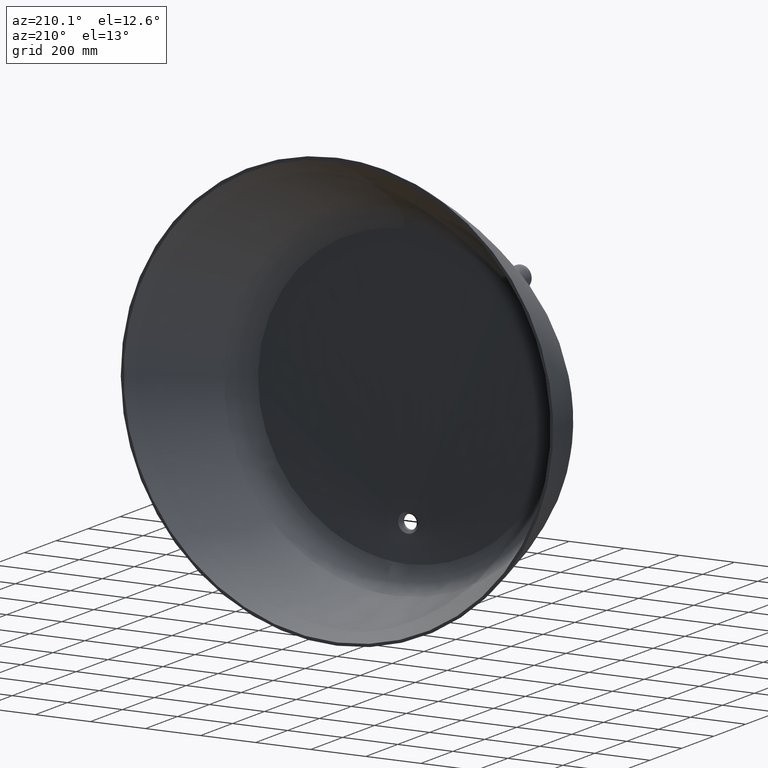
[diagram: clean part render]
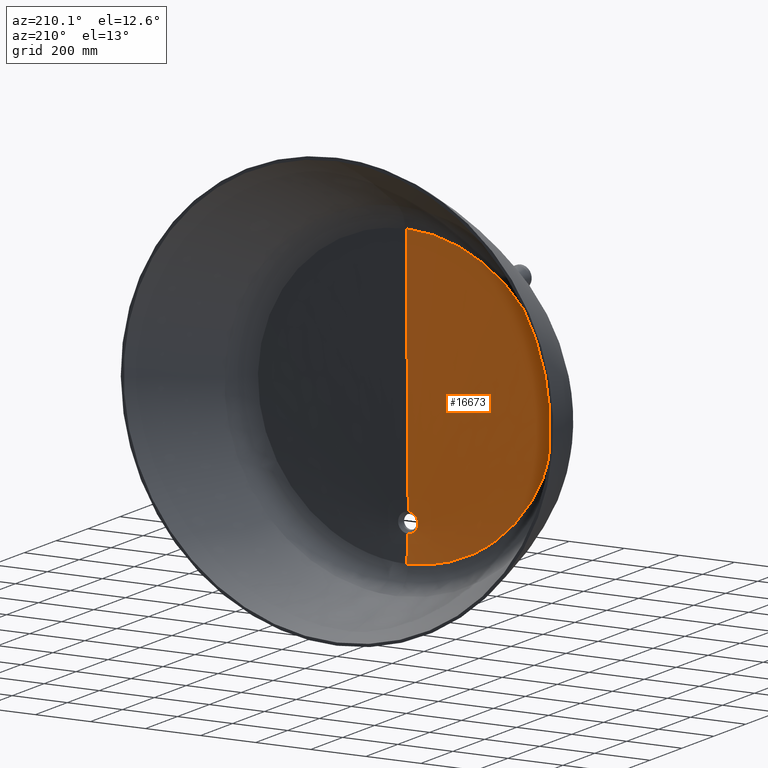
[diagram: same view with one face highlighted and labeled with its STEP entity id]
A machine part, auxiliary view. The second image highlights one B-rep face of the part: STEP entity #16673.
In plain terms, the highlighted face is a freeform B-spline surface patch.
Its self-contained STEP definition (entity closure, byte-faithful):
#9 = CARTESIAN_POINT ( 'NONE',  ( 15.44149996609328700, -445.0000000000000600, -495.9358828308780900 ) ) ;
#25 = CARTESIAN_POINT ( 'NONE',  ( 343.7248534708708100, -433.0000000000002800, -567.1922643707729300 ) ) ;
#41 = CARTESIAN_POINT ( 'NONE',  ( 347.0076870059186300, -432.8800000000002800, -567.9048281861719300 ) ) ;
#46 = CARTESIAN_POINT ( 'NONE',  ( 14.75211004821235000, -445.0000000000000600, -496.4254992289625100 ) ) ;
#47 = CARTESIAN_POINT ( 'NONE',  ( 379.3276363035412800, -432.8800000000000500, -543.6936507425234600 ) ) ;
#70 = CARTESIAN_POINT ( 'NONE',  ( -524.4853212740331400, -434.0363620575088800, 58.28474198315404900 ) ) ;
#85 = CARTESIAN_POINT ( 'NONE',  ( 327.5212440103445000, -433.0000000000000000, -578.0810039369722500 ) ) ;
#126 = CARTESIAN_POINT ( 'NONE',  ( -520.0808785790773100, -434.0151077196203500, 75.25433685949376200 ) ) ;
#136 = CARTESIAN_POINT ( 'NONE',  ( 330.6489353499658300, -432.8800000000000000, -578.8975589840523500 ) ) ;
#143 = CARTESIAN_POINT ( 'NONE',  ( 13.36761329702472900, -445.0000000000000600, -497.3155336650359000 ) ) ;
#185 = CARTESIAN_POINT ( 'NONE',  ( 295.0506589158848100, -433.0000000000000600, -597.7865438911159100 ) ) ;
#188 = CARTESIAN_POINT ( 'NONE',  ( -509.6456672297118200, -433.9752153030912600, 108.6945964368850800 ) ) ;
#222 = CARTESIAN_POINT ( 'NONE',  ( 297.8674893720734100, -432.8800000000000500, -598.7912539933767000 ) ) ;
#257 = CARTESIAN_POINT ( 'NONE',  ( 12.67250646371804000, -445.0000000000000600, -497.7159517030248700 ) ) ;
#283 = CARTESIAN_POINT ( 'NONE',  ( 278.7837310925589800, -433.0000000000000000, -606.6040093851203200 ) ) ;
#305 = CARTESIAN_POINT ( 'NONE',  ( 281.4448433388474200, -432.8800000000000000, -607.6928899619413200 ) ) ;
#319 = CARTESIAN_POINT ( 'NONE',  ( 11.28973872441234700, -445.0000000000001700, -498.4339215963023000 ) ) ;
#331 = CARTESIAN_POINT ( 'NONE',  ( -34.31258345571806200, -444.7095298495954700, -485.6750417637777000 ) ) ;
#342 = CARTESIAN_POINT ( 'NONE',  ( 246.4557750756700000, -432.9999999999998300, -622.3415226785501800 ) ) ;
#370 = CARTESIAN_POINT ( 'NONE',  ( -30.63130002817274500, -433.6305399696943800, 473.0140681143875000 ) ) ;
#376 = CARTESIAN_POINT ( 'NONE',  ( 248.8074354391826000, -432.8799999999998200, -623.5805986893726600 ) ) ;
#402 = CARTESIAN_POINT ( 'NONE',  ( 10.60204590782223200, -445.0000000000001700, -498.7516655761066300 ) ) ;
#465 = CARTESIAN_POINT ( 'NONE',  ( 230.3946313750532800, -432.9999999999997700, -629.2621245695675000 ) ) ;
#488 = CARTESIAN_POINT ( 'NONE',  ( 232.5925572297256000, -432.8799999999997700, -630.5672291595021800 ) ) ;
#495 = CARTESIAN_POINT ( 'NONE',  ( 0.2833448461211892100, -433.6296783176702000, 473.8905839626717100 ) ) ;
#530 = CARTESIAN_POINT ( 'NONE',  ( 9.242115576251329400, -445.0000000000001700, -499.3131197929937500 ) ) ;
#587 = CARTESIAN_POINT ( 'NONE',  ( 198.6870595554336800, -432.9999999999996600, -641.4023669301117300 ) ) ;
#604 = CARTESIAN_POINT ( 'NONE',  ( -25.56689201586797100, -444.5527508574655800, -500.0158251782440300 ) ) ;
#649 = CARTESIAN_POINT ( 'NONE',  ( 200.5815089952255100, -432.8799999999996500, -642.8232594014830300 ) ) ;
#672 = CARTESIAN_POINT ( 'NONE',  ( -24.29094569055607900, -444.5337188010244600, -501.2098345227630000 ) ) ;
#679 = CARTESIAN_POINT ( 'NONE',  ( 8.569878061270545200, -445.0000000000001700, -499.5568300300765800 ) ) ;
#717 = CARTESIAN_POINT ( 'NONE',  ( 183.0404164347378100, -433.0000000000001700, -646.6224330372264100 ) ) ;
#733 = CARTESIAN_POINT ( 'NONE',  ( 184.7851218184724800, -432.8800000000001700, -648.0930890672979100 ) ) ;
#750 = CARTESIAN_POINT ( 'NONE',  ( 7.248931528402691200, -445.0000000000002300, -499.9786649524677400 ) ) ;
#789 = CARTESIAN_POINT ( 'NONE',  ( -23.85534319239835800, -444.5273392658770000, -501.5980409663362100 ) ) ;
#826 = CARTESIAN_POINT ( 'NONE',  ( 152.3154114173910000, -433.0000000000000000, -655.5652551132833400 ) ) ;
#850 = CARTESIAN_POINT ( 'NONE',  ( -22.96330242206629200, -444.5145491902740700, -502.3546809905417900 ) ) ;
#855 = CARTESIAN_POINT ( 'NONE',  ( 153.7660762162808800, -432.8800000000000000, -657.1211210148915100 ) ) ;
#916 = CARTESIAN_POINT ( 'NONE',  ( 6.600136353995534200, -445.0000000000001700, -500.1568972860659400 ) ) ;
#956 = CARTESIAN_POINT ( 'NONE',  ( 137.2367875888101900, -432.9999999999999400, -659.2883126491526600 ) ) ;
#978 = CARTESIAN_POINT ( 'NONE',  ( 138.5431541011583400, -432.8799999999999400, -660.8796268027836000 ) ) ;
#1017 = CARTESIAN_POINT ( 'NONE',  ( 0.05413308068575505000, -437.7057518955884900, -606.7632742945040700 ) ) ;
#1022 = CARTESIAN_POINT ( 'NONE',  ( 5.329841008404020600, -445.0000000000001700, -500.4563098017469500 ) ) ;
#1072 = CARTESIAN_POINT ( 'NONE',  ( 107.7534834136913800, -433.0000000000000000, -665.4370880782352100 ) ) ;
#1085 = CARTESIAN_POINT ( 'NONE',  ( 108.7777198377442600, -432.8800000000000000, -667.0868958610001300 ) ) ;
#1088 = CARTESIAN_POINT ( 'NONE',  ( 4.708340837219667600, -445.0000000000001700, -500.5774899838296500 ) ) ;
#1108 = CARTESIAN_POINT ( 'NONE',  ( 93.34853240705629700, -433.0000000000000600, -667.8630002356301200 ) ) ;
#1138 = CARTESIAN_POINT ( 'NONE',  ( 94.23493432275468300, -432.8800000000000500, -669.5358553381481700 ) ) ;
#1148 = CARTESIAN_POINT ( 'NONE',  ( -0.7417357167064778700, -437.7057538739594000, -606.7633605234864300 ) ) ;
#1173 = CARTESIAN_POINT ( 'NONE',  ( 3.496574317243538000, -445.0000000000002300, -500.7711163001591200 ) ) ;
#1177 = CARTESIAN_POINT ( 'NONE',  ( 65.27845782840556400, -432.9999999999997200, -671.6064100346972100 ) ) ;
#1209 = CARTESIAN_POINT ( 'NONE',  ( -1.537405931273687900, -437.7057123049510200, -606.7615486997738100 ) ) ;
#1216 = CARTESIAN_POINT ( 'NONE',  ( 65.89627666351718500, -432.8799999999997100, -673.3147629720426700 ) ) ;
#1274 = CARTESIAN_POINT ( 'NONE',  ( -3.127905768479495300, -437.7055417729516800, -606.7541411088996000 ) ) ;
#1279 = CARTESIAN_POINT ( 'NONE',  ( 2.906221321538436300, -445.0000000000001700, -500.8436034637723000 ) ) ;
#1282 = CARTESIAN_POINT ( 'NONE',  ( 51.61307942120777200, -433.0000000000000000, -672.9240163917978600 ) ) ;
#1300 = CARTESIAN_POINT ( 'NONE',  ( 52.10014800220446300, -432.8800000000000000, -674.6448205210781500 ) ) ;
#1312 = ORIENTED_EDGE ( 'NONE', *, *, #14709, .F. ) ;
#1339 = CARTESIAN_POINT ( 'NONE',  ( 1.757710387891130700, -445.0000000000000600, -500.9470259963484300 ) ) ;
#1345 = CARTESIAN_POINT ( 'NONE',  ( 25.05622280737459200, -433.0000000000000000, -674.6242365382391900 ) ) ;
#1363 = CARTESIAN_POINT ( 'NONE',  ( 25.28920793156942200, -432.8800000000000000, -676.3610086436581200 ) ) ;
#1367 = CARTESIAN_POINT ( 'NONE',  ( 1.199552449948934500, -445.0000000000000600, -500.9779613653112700 ) ) ;
#1388 = CARTESIAN_POINT ( 'NONE',  ( -503.6151962790202700, -433.9565733147338200, 125.1653524643808200 ) ) ;
#1395 = CARTESIAN_POINT ( 'NONE',  ( 12.16451907402424700, -433.0000000000000600, -675.0068953567931700 ) ) ;
#1402 = CARTESIAN_POINT ( 'NONE',  ( 12.27416874026500100, -432.8800000000000500, -676.7471846967079000 ) ) ;
#1419 = CARTESIAN_POINT ( 'NONE',  ( 0.1165661610249617300, -445.0000000000000600, -501.0053805030397600 ) ) ;
#1422 = CARTESIAN_POINT ( 'NONE',  ( -12.83547701812308400, -433.0000000000000000, -674.9929170662915100 ) ) ;
#1446 = CARTESIAN_POINT ( 'NONE',  ( -12.96499744991456500, -432.8800000000000000, -676.7327924319239400 ) ) ;
#1450 = CARTESIAN_POINT ( 'NONE',  ( -493.3403809051902700, -433.9300944804489300, 149.4944154045570600 ) ) ;
#1453 = VERTEX_POINT ( 'NONE', #3211 ) ;
#1466 = CARTESIAN_POINT ( 'NONE',  ( -0.4424421159053100200, -444.9999999999999400, -501.0027296420385000 ) ) ;
#1484 = CARTESIAN_POINT ( 'NONE',  ( -25.72674477763056100, -433.0000000000000000, -674.5958421708621700 ) ) ;
#1489 = CARTESIAN_POINT ( 'NONE',  ( -25.97958780424781400, -432.8800000000000000, -676.3317732961504600 ) ) ;
#1511 = CARTESIAN_POINT ( 'NONE',  ( -1.594715155379254700, -444.9999999999998300, -500.9575585511362300 ) ) ;
#1524 = CARTESIAN_POINT ( 'NONE',  ( -52.28168349322820800, -432.9999999999999400, -672.8659255356111500 ) ) ;
#1530 = CARTESIAN_POINT ( 'NONE',  ( -52.78855317660670500, -432.8799999999999400, -674.5850092054558900 ) ) ;
#1552 = CARTESIAN_POINT ( 'NONE',  ( -2.187979917922936200, -444.9999999999998300, -500.9150383212352700 ) ) ;
#1572 = CARTESIAN_POINT ( 'NONE',  ( -65.94557992553755800, -433.0000000000000000, -671.5330385144047800 ) ) ;
#1611 = CARTESIAN_POINT ( 'NONE',  ( -66.58315592561369600, -432.8800000000000000, -673.2392185163364500 ) ) ;
#1639 = CARTESIAN_POINT ( 'NONE',  ( -3.407992149299948500, -444.9999999999998900, -500.7829799833656400 ) ) ;
#1641 = CARTESIAN_POINT ( 'NONE',  ( 375.7382676277012500, -433.0000000000000600, -543.2101603341541200 ) ) ;
#1642 = CARTESIAN_POINT ( 'NONE',  ( -489.7101699623157200, -433.9215190877198400, 157.5411287172918000 ) ) ;
#1655 = CARTESIAN_POINT ( 'NONE',  ( -94.01145083627955000, -432.9999999999999400, -667.7582413282854100 ) ) ;
#1678 = CARTESIAN_POINT ( 'NONE',  ( -94.91748542314935800, -432.8799999999999400, -669.4279939417346000 ) ) ;
#1702 = CARTESIAN_POINT ( 'NONE',  ( -4.034828230274482200, -444.9999999999999400, -500.6934052832541500 ) ) ;
#1714 = CARTESIAN_POINT ( 'NONE',  ( -108.4136800281622900, -432.9999999999996600, -665.3162221630381100 ) ) ;
#1723 = EDGE_CURVE ( 'NONE', #10976, #3406, #2468, .T. ) ;
#1765 = CARTESIAN_POINT ( 'NONE',  ( -109.4574685461411600, -432.8799999999996500, -666.9624503318359500 ) ) ;
#1772 = CARTESIAN_POINT ( 'NONE',  ( -17.38023338952148200, -433.6298954048141900, 473.6767832039365100 ) ) ;
#1777 = CARTESIAN_POINT ( 'NONE',  ( -5.318647477077397500, -445.0000000000000600, -500.4586580551212500 ) ) ;
#1791 = CARTESIAN_POINT ( 'NONE',  ( -33.74848163041693300, -444.6965264120924500, -487.3393069338290500 ) ) ;
#1803 = CARTESIAN_POINT ( 'NONE',  ( -137.8900898201988200, -432.9999999999997700, -659.1344804884126900 ) ) ;
#1806 = CARTESIAN_POINT ( 'NONE',  ( -139.2158042436300300, -432.8799999999997700, -660.7212387127457300 ) ) ;
#1851 = CARTESIAN_POINT ( 'NONE',  ( -33.31936187608958700, -444.6873827165178500, -488.4256712767187900 ) ) ;
#1859 = CARTESIAN_POINT ( 'NONE',  ( -451.2512435118486000, -435.1077201685944300, -358.7210658581751100 ) ) ;
#1888 = CARTESIAN_POINT ( 'NONE',  ( -5.975630642905788800, -445.0000000000001100, -500.3134855270997700 ) ) ;
#1894 = CARTESIAN_POINT ( 'NONE',  ( -8.547692200861590100, -433.6296735109386300, 473.8953649131653400 ) ) ;
#1929 = CARTESIAN_POINT ( 'NONE',  ( -152.9645408630419800, -433.0000000000000600, -655.3945634123041400 ) ) ;
#1952 = CARTESIAN_POINT ( 'NONE',  ( -154.4344299652433400, -432.8800000000000500, -656.9453741911561300 ) ) ;
#1996 = CARTESIAN_POINT ( 'NONE',  ( -7.316231213697510500, -445.0000000000000000, -499.9590358775902200 ) ) ;
#2062 = CARTESIAN_POINT ( 'NONE',  ( -183.6795262417567800, -432.9999999999999400, -646.4173882895096300 ) ) ;
#2079 = CARTESIAN_POINT ( 'NONE',  ( -22.50708056671070900, -444.5081414524194100, -502.7229454803344900 ) ) ;
#2082 = CARTESIAN_POINT ( 'NONE',  ( -185.4431591920373400, -432.8799999999999400, -647.8819718136288700 ) ) ;
#2085 = CARTESIAN_POINT ( 'NONE',  ( -7.999940112203148600, -444.9999999999999400, -499.7496556055718300 ) ) ;
#2123 = CARTESIAN_POINT ( 'NONE',  ( -199.3203221721636900, -432.9999999999999400, -641.1798283831757300 ) ) ;
#2143 = CARTESIAN_POINT ( 'NONE',  ( -21.57251362444656800, -444.4953288684129700, -503.4400680085879600 ) ) ;
#2149 = CARTESIAN_POINT ( 'NONE',  ( -201.2335259927633000, -432.8799999999999400, -642.5941301109518200 ) ) ;
#2211 = CARTESIAN_POINT ( 'NONE',  ( -9.386539793221738000, -444.9999999999999400, -499.2577382659851500 ) ) ;
#2238 = CARTESIAN_POINT ( 'NONE',  ( -34.81033289014928300, -444.7219510947774100, -483.9793464935229400 ) ) ;
#2258 = CARTESIAN_POINT ( 'NONE',  ( -231.0142981817866700, -433.0000000000000000, -629.0041362069372300 ) ) ;
#2278 = CARTESIAN_POINT ( 'NONE',  ( -21.09542012216041900, -444.4889414310288200, -503.7878310045151700 ) ) ;
#2284 = CARTESIAN_POINT ( 'NONE',  ( -233.2305757656723100, -432.8800000000000000, -630.3016001863467200 ) ) ;
#2319 = CARTESIAN_POINT ( 'NONE',  ( -10.08943057573469000, -444.9999999999999400, -498.9752011984167600 ) ) ;
#2340 = CARTESIAN_POINT ( 'NONE',  ( -247.0676927865866300, -432.9999999999998900, -622.0655780592815100 ) ) ;
#2400 = CARTESIAN_POINT ( 'NONE',  ( -249.4374754086951500, -432.8799999999998800, -623.2964818278902600 ) ) ;
#2435 = CARTESIAN_POINT ( 'NONE',  ( -11.50675868255489600, -445.0000000000000000, -498.3281243667077000 ) ) ;
#2438 = CARTESIAN_POINT ( 'NONE',  ( -279.3780299103594900, -432.9999999999999400, -606.2919234466389800 ) ) ;
#2457 = CARTESIAN_POINT ( 'NONE',  ( -282.0567426226375000, -432.8799999999999400, -607.3715614374383400 ) ) ;
#2468 = B_SPLINE_CURVE_WITH_KNOTS ( 'NONE', 3,
 ( #495, #1894, #1772, #370, #8925, #8854, #8796, #19038, #18977, #17735, #17668, #17606, #17485, #16340, #16274, #16149, #16029, #14801, #14677, #14616, #14557, #13396, #13268, #11833, #10231, #10173, #10112, #8736, #8673, #8603, #7345, #7274, #7214, #6016, #5842, #4553, #4486, #4426, #4368, #4311, #4249, #3083, #2852, #2794, #2730, #1642, #1450, #1388, #188, #126, #70, #17612, #16096, #14622, #11711, #7221, #5786, #4315, #2857, #18698, #17181, #9811, #8313, #3951, #18996, #8620, #4197, #2745, #18036, #16508, #16446, #15136, #15017, #14963, #12162, #12097, #10644, #9147, #4840, #4640, #3238, #3177, #1859, #15876, #14406, #9955, #6988, #18967, #18909, #18848, #18787, #18728, #18607, #18543, #18406, #18340, #17537, #17343, #17277, #17213, #17146, #17085, #17031, #16017, #15895, #15829, #15768, #15641, #15576, #15373, #14545, #14361, #14231, #14168 ),
 .UNSPECIFIED., .F., .F.,
 ( 4, 2, 2, 2, 2, 2, 2, 2, 2, 2, 2, 2, 2, 2, 2, 2, 2, 2, 2, 2, 2, 2, 2, 2, 2, 2, 2, 2, 2, 2, 2, 2, 2, 2, 2, 2, 2, 2, 2, 2, 2, 2, 2, 2, 2, 2, 2, 2, 2, 2, 2, 2, 2, 2, 2, 2, 4 ),
 ( 1.682910725432877200, 1.709145322678809100, 1.722262621301774900, 1.728821270613258000, 1.735379919924740800, 1.787849114416604400, 1.840318308908468000, 1.892787503400331600, 1.905904802023297600, 1.912463451334780700, 1.919022100646263800, 1.945256697892195900, 1.997725892384060400, 2.050195086875924700, 2.076429684121857000, 2.089546982744822800, 2.096105632056305600, 2.102664281367788500, 2.155133475859653200, 2.207602670351517500, 2.260071864843381700, 2.273189163466347900, 2.286306462089314100, 2.312541059335246500, 2.365010253827111200, 2.417479448318975900, 2.443714045564908200, 2.450272694876391100, 2.456831344187874400, 2.469948642810840600, 2.522417837302705300, 2.574887031794570000, 2.627356226286434700, 2.633914875597918000, 2.640473524909400900, 2.653590823532367100, 2.679825420778299400, 2.732294615270164200, 2.784763809762028900, 2.810998407007961200, 2.824115705630927800, 2.837233004253893600, 2.889702198745758300, 2.942171393237622100, 2.994640587729486800, 3.007757886352452600, 3.020875184975419200, 3.047109782221351100, 3.099578976713215800, 3.152048171205080100, 3.178282768451012400, 3.184841417762495700, 3.191400067073979100, 3.204517365696944800, 3.256986560188810400, 3.309455754680676000, 3.361924949172541100 ),
 .UNSPECIFIED. ) ;
#2497 = CARTESIAN_POINT ( 'NONE',  ( -12.22123759878698800, -444.9999999999999400, -497.9633943389939600 ) ) ;
#2521 = CARTESIAN_POINT ( 'NONE',  ( -295.6350873166937800, -433.0000000000001700, -597.4562727612393500 ) ) ;
#2547 = CARTESIAN_POINT ( 'NONE',  ( -298.4692258138728700, -432.8800000000001700, -598.4512015454618000 ) ) ;
#2559 = CARTESIAN_POINT ( 'NONE',  ( -13.64899961005685800, -444.9999999999999400, -497.1445609062250200 ) ) ;
#2580 = CARTESIAN_POINT ( 'NONE',  ( -328.0836161312006400, -432.9999999999999400, -577.7144344720871900 ) ) ;
#2617 = CARTESIAN_POINT ( 'NONE',  ( -331.2279622964120400, -432.8799999999999400, -578.5201332077457400 ) ) ;
#2639 = CARTESIAN_POINT ( 'NONE',  ( -14.36228270509463400, -444.9999999999999400, -496.6904575011698200 ) ) ;
#2665 = CARTESIAN_POINT ( 'NONE',  ( -344.2750389850315900, -433.0000000000000600, -566.8075818161568100 ) ) ;
#2675 = CARTESIAN_POINT ( 'NONE',  ( -347.5741665478309400, -432.8800000000000500, -567.5087530593066300 ) ) ;
#2679 = CARTESIAN_POINT ( 'NONE',  ( -15.77482752713680700, -445.0000000000001100, -495.6858871600954300 ) ) ;
#2701 = CARTESIAN_POINT ( 'NONE',  ( -376.2616148240987300, -433.0000000000002800, -542.7896933558520200 ) ) ;
#2730 = CARTESIAN_POINT ( 'NONE',  ( -483.9518875108856300, -433.9089801501318700, 169.5151856120818100 ) ) ;
#2737 = CARTESIAN_POINT ( 'NONE',  ( -3.922808275801966900, -437.7054128102328100, -606.7485453586226600 ) ) ;
#2739 = CARTESIAN_POINT ( 'NONE',  ( -379.8664826970683100, -432.8800000000002800, -543.2607314178096700 ) ) ;
#2743 = CARTESIAN_POINT ( 'NONE',  ( -16.47399670952314600, -445.0000000000000600, -495.1351699995946100 ) ) ;
#2745 = CARTESIAN_POINT ( 'NONE',  ( -527.2513307449980900, -434.4644582876586600, -177.2562441564563800 ) ) ;
#2767 = CARTESIAN_POINT ( 'NONE',  ( -392.0564898005732200, -432.9999999999998300, -529.6779305721888700 ) ) ;
#2791 = CARTESIAN_POINT ( 'NONE',  ( -395.8123147314837000, -432.8799999999998200, -530.0233581779149300 ) ) ;
#2794 = CARTESIAN_POINT ( 'NONE',  ( -481.9780762777368700, -433.9048515038268800, 173.4945817070315000 ) ) ;
#2802 = CARTESIAN_POINT ( 'NONE',  ( -17.84040821804229500, -444.9999999999999400, -493.9351053096568800 ) ) ;
#2808 = CARTESIAN_POINT ( 'NONE',  ( -422.8623815143669200, -432.9999999999998900, -501.1780356190980100 ) ) ;
#2824 = CARTESIAN_POINT ( 'NONE',  ( -426.9126012473301400, -432.8799999999998800, -501.2504649221924100 ) ) ;
#2828 = CARTESIAN_POINT ( 'NONE',  ( -18.50765054417510000, -444.9999999999998900, -493.2857577802200800 ) ) ;
#2849 = CARTESIAN_POINT ( 'NONE',  ( 0.6034969892666405300, -444.3409941869582600, -510.5477085865213100 ) ) ;
#2850 = CARTESIAN_POINT ( 'NONE',  ( -437.8728386835980500, -432.9999999999999400, -485.7892007591005900 ) ) ;
#2852 = CARTESIAN_POINT ( 'NONE',  ( -477.9455633571349700, -433.8967423558010000, 181.3813335263668900 ) ) ;
#2857 = CARTESIAN_POINT ( 'NONE',  ( -535.7848243012940700, -434.1271120910306500, -6.921716537291233700 ) ) ;
#2860 = CARTESIAN_POINT ( 'NONE',  ( -442.0664905649923100, -432.8799999999999400, -485.7142351888894000 ) ) ;
#2865 = CARTESIAN_POINT ( 'NONE',  ( -19.79248794120239200, -444.9999999999998900, -491.8866659634025500 ) ) ;
#2881 = CARTESIAN_POINT ( 'NONE',  ( -466.6777868586815400, -433.0000000000000600, -452.7462555338117300 ) ) ;
#2906 = CARTESIAN_POINT ( 'NONE',  ( -471.1466398478563100, -432.8800000000000500, -452.3548514295158600 ) ) ;
#2915 = CARTESIAN_POINT ( 'NONE',  ( -20.40979272966010100, -444.9999999999999400, -491.1367276056332100 ) ) ;
#2939 = CARTESIAN_POINT ( 'NONE',  ( -480.4714204092341000, -433.0000000000001700, -435.0915873329927900 ) ) ;
#2963 = CARTESIAN_POINT ( 'NONE',  ( -485.0720366860298300, -432.8800000000001700, -434.5311359302663700 ) ) ;
#2978 = CARTESIAN_POINT ( 'NONE',  ( -21.57440894008208000, -444.9999999999999400, -489.5430130143465700 ) ) ;
#3029 = CARTESIAN_POINT ( 'NONE',  ( 0.6034969892666405300, -444.3409941869582600, -510.5477085865213100 ) ) ;
#3030 = CARTESIAN_POINT ( 'NONE',  ( -506.3873338284471400, -432.9999999999998300, -397.6307568043974900 ) ) ;
#3036 = CARTESIAN_POINT ( 'NONE',  ( -511.2354630773307900, -432.8799999999998200, -396.7116342422979800 ) ) ;
#3056 = CARTESIAN_POINT ( 'NONE',  ( -22.12172036204633600, -445.0000000000000000, -488.6992367808290400 ) ) ;
#3078 = CARTESIAN_POINT ( 'NONE',  ( -518.5085000486769800, -433.0000000000000600, -377.8243196892621500 ) ) ;
#3083 = CARTESIAN_POINT ( 'NONE',  ( -475.8850469944882200, -433.8927578965274800, 185.2926761800045800 ) ) ;
#3092 = CARTESIAN_POINT ( 'NONE',  ( -523.4723678455433200, -432.8800000000000500, -376.7155705183464500 ) ) ;
#3150 = CARTESIAN_POINT ( 'NONE',  ( -22.87536831033597600, -444.9999999999999400, -487.3684042909718500 ) ) ;
#3177 = CARTESIAN_POINT ( 'NONE',  ( -453.6562196069805300, -435.0897738771726600, -355.0122941596641800 ) ) ;
#3206 = CARTESIAN_POINT ( 'NONE',  ( -535.1000815888555700, -432.9999999999999400, -346.6731694299215900 ) ) ;
#3211 = CARTESIAN_POINT ( 'NONE',  ( 0.05413308068575505000, -437.7057518955884900, -606.7632742945040700 ) ) ;
#3231 = CARTESIAN_POINT ( 'NONE',  ( -32.35753178418684000, -444.6680886796183900, -490.5494187290319100 ) ) ;
#3238 = CARTESIAN_POINT ( 'NONE',  ( -458.3841195991832900, -435.0543396110464300, -347.5229451587179600 ) ) ;
#3244 = CARTESIAN_POINT ( 'NONE',  ( -540.2223287216407900, -432.8799999999999400, -345.2662170813110800 ) ) ;
#3271 = CARTESIAN_POINT ( 'NONE',  ( -23.11525741661970900, -444.9999999999999400, -486.9139416834132100 ) ) ;
#3279 = EDGE_CURVE ( 'NONE', #4090, #12133, #5920, .T. ) ;
#3297 = CARTESIAN_POINT ( 'NONE',  ( -540.3657397873470200, -433.0000000000000000, -336.0501338327198900 ) ) ;
#3316 = B_SPLINE_CURVE_WITH_KNOTS ( 'NONE', 1,
 ( #4526, #4939 ),
 .UNSPECIFIED., .F., .F.,
 ( 2, 2 ),
 ( 0.3921459912990322700, 0.9450828378924802700 ),
 .UNSPECIFIED. ) ;
#3344 = CARTESIAN_POINT ( 'NONE',  ( -545.5382446110543200, -432.8800000000000000, -334.5414957542129700 ) ) ;
#3373 = CARTESIAN_POINT ( 'NONE',  ( -23.57034716792720300, -444.9999999999999400, -485.9854367024231600 ) ) ;
#3377 = CARTESIAN_POINT ( 'NONE',  ( -550.3149743519481900, -433.0000000000001100, -314.3652734087016300 ) ) ;
#3397 = CARTESIAN_POINT ( 'NONE',  ( -555.5824206237883800, -432.8800000000001100, -312.6490717757644100 ) ) ;
#3406 = VERTEX_POINT ( 'NONE', #4841 ) ;
#3462 = CARTESIAN_POINT ( 'NONE',  ( -20.13076628491415200, -444.4763791744082900, -504.4555119069413500 ) ) ;
#3468 = CARTESIAN_POINT ( 'NONE',  ( -23.78554781295095600, -444.9999999999999400, -485.5113943289916800 ) ) ;
#3515 = CARTESIAN_POINT ( 'NONE',  ( -554.9985109544696800, -432.9999999999997700, -303.3034600155097000 ) ) ;
#3534 = CARTESIAN_POINT ( 'NONE',  ( -19.64139392670991000, -444.4701780540494800, -504.7768352542926200 ) ) ;
#3538 = CARTESIAN_POINT ( 'NONE',  ( -560.3106405858848100, -432.8799999999997700, -301.4813806723748300 ) ) ;
#3540 = CARTESIAN_POINT ( 'NONE',  ( -24.18922593343725300, -444.9999999999999400, -484.5458536055958800 ) ) ;
#3556 = CARTESIAN_POINT ( 'NONE',  ( -563.7349442573619200, -432.9999999999998300, -280.7880697219381400 ) ) ;
#3572 = CARTESIAN_POINT ( 'NONE',  ( 0.2833448461211892100, -433.6296783176702000, 473.8905839626717100 ) ) ;
#3599 = CARTESIAN_POINT ( 'NONE',  ( -569.1304014406010800, -432.8799999999998200, -278.7504918831015700 ) ) ;
#3603 = CARTESIAN_POINT ( 'NONE',  ( -24.37770340889979100, -444.9999999999999400, -484.0543552556316600 ) ) ;
#3680 = CARTESIAN_POINT ( 'NONE',  ( -567.7878025044907400, -432.9999999999998900, -269.3345118708074300 ) ) ;
#3688 = CARTESIAN_POINT ( 'NONE',  ( -34.48756382462291000, -444.7137503770474000, -485.1134883979901200 ) ) ;
#3708 = CARTESIAN_POINT ( 'NONE',  ( -573.2219034954466700, -432.8799999999998800, -267.1873134369591900 ) ) ;
#3725 = CARTESIAN_POINT ( 'NONE',  ( -18.15471200844102700, -444.4519200149711700, -505.7021820438224600 ) ) ;
#3763 = CARTESIAN_POINT ( 'NONE',  ( -24.72590048196251200, -444.9999999999999400, -483.0560263685100600 ) ) ;
#3783 = CARTESIAN_POINT ( 'NONE',  ( -575.2193654199828600, -433.0000000000001700, -246.0893708643994800 ) ) ;
#3786 = CARTESIAN_POINT ( 'NONE',  ( -580.7243000693630400, -432.8800000000001700, -243.7197043093583500 ) ) ;
#3822 = CARTESIAN_POINT ( 'NONE',  ( -24.88562007956268500, -444.9999999999999400, -482.5491958313526800 ) ) ;
#3838 = CARTESIAN_POINT ( 'NONE',  ( -578.5980346276143100, -433.0000000000000600, -234.2978142191640500 ) ) ;
#3842 = CARTESIAN_POINT ( 'NONE',  ( -584.1351587730947600, -432.8800000000000500, -231.8153004030421600 ) ) ;
#3878 = CARTESIAN_POINT ( 'NONE',  ( -25.17426668859936400, -445.0000000000000000, -481.5223263591852900 ) ) ;
#3881 = CARTESIAN_POINT ( 'NONE',  ( -584.6438655225383600, -433.0000000000001100, -210.4364419083918000 ) ) ;
#3941 = CARTESIAN_POINT ( 'NONE',  ( -590.2385615108777300, -432.8800000000001100, -207.7255830638838700 ) ) ;
#3944 = CARTESIAN_POINT ( 'NONE',  ( -25.30310892052333200, -445.0000000000000600, -481.0023759153977500 ) ) ;
#3951 = CARTESIAN_POINT ( 'NONE',  ( -535.0360600846049700, -434.3596939393286800, -133.7986677093544800 ) ) ;
#3968 = CARTESIAN_POINT ( 'NONE',  ( -587.3109964050205500, -432.9999999999999400, -198.3666596362723500 ) ) ;
#3992 = CARTESIAN_POINT ( 'NONE',  ( -592.9310752798655800, -432.8799999999999400, -195.5403024734810900 ) ) ;
#4006 = B_SPLINE_CURVE_WITH_KNOTS ( 'NONE', 3,
 ( #4063, #2737, #1274, #1209, #1148, #1017 ),
 .UNSPECIFIED., .F., .F.,
 ( 4, 2, 4 ),
 ( 3.361924949172541100, 3.364275780021901400, 3.366626610871261700 ),
 .UNSPECIFIED. ) ;
#4010 = CARTESIAN_POINT ( 'NONE',  ( -25.52898559482021700, -445.0000000000000600, -479.9524520190711300 ) ) ;
#4028 = CARTESIAN_POINT ( 'NONE',  ( -591.9035568715507900, -433.0000000000000000, -174.0137292039714800 ) ) ;
#4054 = CARTESIAN_POINT ( 'NONE',  ( -597.5673025843181000, -432.8800000000000000, -170.9543419758204800 ) ) ;
#4063 = CARTESIAN_POINT ( 'NONE',  ( -4.717364487500916000, -437.7052400608869200, -606.7410637338608700 ) ) ;
#4067 = CARTESIAN_POINT ( 'NONE',  ( -25.62602003719312900, -445.0000000000000600, -479.4224785665321100 ) ) ;
#4071 = CARTESIAN_POINT ( 'NONE',  ( -593.8289618320961800, -433.0000000000000600, -161.7306203239421300 ) ) ;
#4090 = VERTEX_POINT ( 'NONE', #3029 ) ;
#4119 = CARTESIAN_POINT ( 'NONE',  ( -599.5109912500452100, -432.8800000000000500, -158.5537017415162500 ) ) ;
#4131 = CARTESIAN_POINT ( 'NONE',  ( -25.78743548802543700, -445.0000000000000600, -478.3555170593594400 ) ) ;
#4135 = EDGE_CURVE ( 'NONE', #3406, #1453, #4006, .T. ) ;
#4154 = CARTESIAN_POINT ( 'NONE',  ( -596.9158740515529200, -433.0000000000000000, -137.0199622511297300 ) ) ;
#4159 = CARTESIAN_POINT ( 'NONE',  ( -602.6271584371882000, -432.8800000000000000, -133.6066067030474200 ) ) ;
#4195 = CARTESIAN_POINT ( 'NONE',  ( -25.85181649648484000, -445.0000000000000000, -477.8185290047258000 ) ) ;
#4197 = CARTESIAN_POINT ( 'NONE',  ( -528.1683492891244200, -434.4534383182189000, -172.9158818970653000 ) ) ;
#4245 = CARTESIAN_POINT ( 'NONE',  ( -598.0773641379873900, -433.0000000000000600, -124.5924568501075200 ) ) ;
#4249 = CARTESIAN_POINT ( 'NONE',  ( -465.3637800785442100, -433.8731635001685700, 204.6911153379269600 ) ) ;
#4275 = CARTESIAN_POINT ( 'NONE',  ( -603.7996196144024500, -432.8800000000000500, -121.0601961285613400 ) ) ;
#4307 = CARTESIAN_POINT ( 'NONE',  ( -25.94707943512773700, -444.9999999999999400, -476.7405467000206200 ) ) ;
#4311 = CARTESIAN_POINT ( 'NONE',  ( -456.2489860862161800, -433.8585104900160400, 219.7048455861572100 ) ) ;
#4315 = CARTESIAN_POINT ( 'NONE',  ( -535.2644933809371000, -434.1205541024440300, -2.525381832852409100 ) ) ;
#4319 = CARTESIAN_POINT ( 'NONE',  ( -599.6228791959032400, -433.0000000000001100, -99.66471194819889900 ) ) ;
#4324 = CARTESIAN_POINT ( 'NONE',  ( -605.3596371935110500, -432.8800000000001100, -95.89395360068067500 ) ) ;
#4345 = CARTESIAN_POINT ( 'NONE',  ( -25.97796136531122400, -444.9999999999999400, -476.1995524499490700 ) ) ;
#4368 = CARTESIAN_POINT ( 'NONE',  ( -436.6615461455590400, -433.8307702933838600, 248.7495555192143100 ) ) ;
#4422 = CARTESIAN_POINT ( 'NONE',  ( -600.0068953567935100, -433.0000000000000600, -87.16451907402424100 ) ) ;
#4426 = CARTESIAN_POINT ( 'NONE',  ( -426.1885716810986100, -433.8177128950168300, 262.7802974671716400 ) ) ;
#4436 = CARTESIAN_POINT ( 'NONE',  ( -605.7471846967082500, -432.8800000000000500, -83.27416874026499700 ) ) ;
#4486 = CARTESIAN_POINT ( 'NONE',  ( -403.8771728664684100, -433.7929212853740600, 289.8535315300518400 ) ) ;
#4495 = CARTESIAN_POINT ( 'NONE',  ( -26.00538050303984900, -444.9999999999999400, -475.1165661610250500 ) ) ;
#4502 = CARTESIAN_POINT ( 'NONE',  ( -599.9929170662911700, -433.0000000000001100, -62.16452298187668600 ) ) ;
#4523 = CARTESIAN_POINT ( 'NONE',  ( -605.7327924319237100, -432.8800000000001100, -58.03500255008520300 ) ) ;
#4526 = CARTESIAN_POINT ( 'NONE',  ( 0.05413308068575505000, -437.7057518955884900, -606.7632742945040700 ) ) ;
#4537 = B_SPLINE_CURVE_WITH_KNOTS ( 'NONE', 1,
 ( #6846, #6958 ),
 .UNSPECIFIED., .F., .F.,
 ( 2, 2 ),
 ( 0.05247319313919063900, 0.9896024752577973200 ),
 .UNSPECIFIED. ) ;
#4553 = CARTESIAN_POINT ( 'NONE',  ( -392.0397766256653000, -433.7811959294816700, 302.8967677526141000 ) ) ;
#4608 = CARTESIAN_POINT ( 'NONE',  ( -26.00191446571662700, -444.9999999999999400, -474.5747022862304300 ) ) ;
#4619 = CARTESIAN_POINT ( 'NONE',  ( -599.5949226415085600, -433.0000000000000600, -49.66476735461606000 ) ) ;
#4640 = CARTESIAN_POINT ( 'NONE',  ( -460.7090276084240900, -435.0368365335413000, -343.7388405032227200 ) ) ;
#4669 = CARTESIAN_POINT ( 'NONE',  ( -605.3308527232665000, -432.8800000000000500, -45.41566800529991400 ) ) ;
#4681 = CARTESIAN_POINT ( 'NONE',  ( -25.96132350302704600, -444.9999999999999400, -473.4932804210529900 ) ) ;
#4705 = CARTESIAN_POINT ( 'NONE',  ( -598.0215327735093100, -432.9999999999998900, -24.73876633134415600 ) ) ;
#4706 = ORIENTED_EDGE ( 'NONE', *, *, #1723, .F. ) ;
#4710 = CARTESIAN_POINT ( 'NONE',  ( -603.7421348662142000, -432.8799999999998800, -20.25122119044706900 ) ) ;
#4735 = CARTESIAN_POINT ( 'NONE',  ( -25.92419857766067200, -444.9999999999999400, -472.9537224306701500 ) ) ;
#4751 = CARTESIAN_POINT ( 'NONE',  ( -596.8461461930191900, -433.0000000000000600, -12.31256755216288600 ) ) ;
#4817 = CARTESIAN_POINT ( 'NONE',  ( -602.5553656691728300, -432.8800000000000500, -7.706156003377812700 ) ) ;
#4840 = CARTESIAN_POINT ( 'NONE',  ( -467.5232912657400600, -434.9852744065648800, -332.3382029722401400 ) ) ;
#4841 = CARTESIAN_POINT ( 'NONE',  ( -4.717364487500916000, -437.7052400608869200, -606.7410637338608700 ) ) ;
#4848 = CARTESIAN_POINT ( 'NONE',  ( -25.81698216321668600, -444.9999999999999400, -471.8799596793934400 ) ) ;
#4873 = CARTESIAN_POINT ( 'NONE',  ( -593.7316028874300900, -432.9999999999998900, 12.39462309023295800 ) ) ;
#4888 = CARTESIAN_POINT ( 'NONE',  ( -599.4107490946721600, -432.8799999999998800, 17.23736891792922100 ) ) ;
#4909 = CARTESIAN_POINT ( 'NONE',  ( -25.74689067413908100, -445.0000000000000000, -471.3457549184996100 ) ) ;
#4931 = CARTESIAN_POINT ( 'NONE',  ( -17.13719508899343700, -444.4401839962922100, -506.2689752483511300 ) ) ;
#4937 = CARTESIAN_POINT ( 'NONE',  ( -591.7924633837677700, -433.0000000000000600, 24.67557118091728800 ) ) ;
#4939 = CARTESIAN_POINT ( 'NONE',  ( 0.6034969892666405300, -444.3409941869582600, -510.5477085865213100 ) ) ;
#4984 = CARTESIAN_POINT ( 'NONE',  ( -597.4529191108640600, -432.8800000000000500, 29.63578444191145800 ) ) ;
#5004 = CARTESIAN_POINT ( 'NONE',  ( -15.05062040204882700, -444.4180261176548500, -507.3028317690872800 ) ) ;
#5010 = CARTESIAN_POINT ( 'NONE',  ( -25.57443345660452000, -445.0000000000000600, -470.2857459712780000 ) ) ;
#5050 = CARTESIAN_POINT ( 'NONE',  ( -587.1726728061297500, -433.0000000000000000, 49.02335069564900700 ) ) ;
#5055 = CARTESIAN_POINT ( 'NONE',  ( -592.7886551996249400, -432.8800000000000000, 54.21644166231828200 ) ) ;
#5073 = CARTESIAN_POINT ( 'NONE',  ( -25.47206772814757200, -445.0000000000000600, -469.7599417849501700 ) ) ;
#5090 = CARTESIAN_POINT ( 'NONE',  ( -584.4920463995657700, -433.0000000000000000, 61.09014286710409200 ) ) ;
#5136 = CARTESIAN_POINT ( 'NONE',  ( -590.0822461862799200, -432.8800000000000000, 66.39864371362463700 ) ) ;
#5139 = CARTESIAN_POINT ( 'NONE',  ( -25.23575435618630200, -445.0000000000002300, -468.7197813319382400 ) ) ;
#5153 = CARTESIAN_POINT ( 'NONE',  ( -578.4195359934917600, -432.9999999999998300, 84.94473942901287000 ) ) ;
#5181 = CARTESIAN_POINT ( 'NONE',  ( -583.9513738098647800, -432.8799999999998200, 90.48138463662238000 ) ) ;
#5200 = CARTESIAN_POINT ( 'NONE',  ( -13.98064211379136300, -444.4076000979270000, -507.7702513566948700 ) ) ;
#5203 = CARTESIAN_POINT ( 'NONE',  ( -25.10188690558995400, -445.0000000000002300, -468.2055177332621300 ) ) ;
#5208 = CARTESIAN_POINT ( 'NONE',  ( -575.0276828361152200, -433.0000000000001700, 96.73251046051787200 ) ) ;
#5242 = CARTESIAN_POINT ( 'NONE',  ( -580.5269407954205000, -432.8800000000001700, 102.3818907424556700 ) ) ;
#5261 = CARTESIAN_POINT ( 'NONE',  ( -24.80465510495652400, -445.0000000000001700, -467.1908478237633100 ) ) ;
#5319 = CARTESIAN_POINT ( 'NONE',  ( -567.5701303846186600, -432.9999999999997200, 119.9693264904278700 ) ) ;
#5322 = CARTESIAN_POINT ( 'NONE',  ( -572.9977851374152400, -432.8799999999997100, 125.8409282335698000 ) ) ;
#5358 = CARTESIAN_POINT ( 'NONE',  ( -24.64129075491943900, -445.0000000000001700, -466.6904415129404800 ) ) ;
#5381 = CARTESIAN_POINT ( 'NONE',  ( -563.5044665808528600, -432.9999999999999400, 131.4183450184620200 ) ) ;
#5385 = CARTESIAN_POINT ( 'NONE',  ( -568.8930983391121600, -432.8799999999999400, 137.3994328837760600 ) ) ;
#5417 = CARTESIAN_POINT ( 'NONE',  ( -24.28698978519535600, -445.0000000000000600, -465.7057102113422500 ) ) ;
#5420 = CARTESIAN_POINT ( 'NONE',  ( -554.7428606111036500, -432.9999999999998300, 153.9239516034574000 ) ) ;
#5442 = CARTESIAN_POINT ( 'NONE',  ( -560.0474193193628000, -432.8799999999998200, 160.1202482216053800 ) ) ;
#5474 = CARTESIAN_POINT ( 'NONE',  ( -24.09605316550835100, -445.0000000000000000, -465.2213852205667900 ) ) ;
#5488 = CARTESIAN_POINT ( 'NONE',  ( -550.0469569196388900, -432.9999999999997700, 164.9805206541824400 ) ) ;
#5503 = CARTESIAN_POINT ( 'NONE',  ( -555.3064659571803100, -432.8799999999997700, 171.2825397129299500 ) ) ;
#5506 = CARTESIAN_POINT ( 'NONE',  ( -23.68853228627519800, -444.9999999999999400, -464.2710405912570200 ) ) ;
#5543 = CARTESIAN_POINT ( 'NONE',  ( -540.0734791973703800, -433.0000000000000600, 186.6542416580622000 ) ) ;
#5565 = CARTESIAN_POINT ( 'NONE',  ( -545.2373286664812900, -432.8800000000000500, 193.1634944805554100 ) ) ;
#5599 = CARTESIAN_POINT ( 'NONE',  ( -23.47194802672903400, -444.9999999999999400, -463.8050209527227700 ) ) ;
#5603 = CARTESIAN_POINT ( 'NONE',  ( -534.7959449429141600, -432.9999999999997700, 197.2713822220650000 ) ) ;
#5624 = CARTESIAN_POINT ( 'NONE',  ( -539.9091849120759400, -432.8799999999997700, 203.8821462538128600 ) ) ;
#5658 = CARTESIAN_POINT ( 'NONE',  ( -22.78661073298819400, -445.0000000000000000, -462.4377561137728800 ) ) ;
#5677 = CARTESIAN_POINT ( 'NONE',  ( -518.1695385959487800, -433.0000000000001700, 228.4039592511196000 ) ) ;
#5681 = CARTESIAN_POINT ( 'NONE',  ( -523.1233678745784300, -432.8800000000001700, 235.3123764047685400 ) ) ;
#5709 = CARTESIAN_POINT ( 'NONE',  ( -22.28269874582789400, -444.9999999999999400, -461.5673649177826400 ) ) ;
#5749 = CARTESIAN_POINT ( 'NONE',  ( -506.0262311474722300, -433.0000000000000000, 248.1968293296612800 ) ) ;
#5777 = CARTESIAN_POINT ( 'NONE',  ( -510.8636664714887300, -432.8800000000000000, 255.2944712721357200 ) ) ;
#5786 = CARTESIAN_POINT ( 'NONE',  ( -534.4000792437441300, -434.1108709842230800, 4.072387893597004400 ) ) ;
#5799 = CARTESIAN_POINT ( 'NONE',  ( -21.20022253320046000, -444.9999999999999400, -459.9167582519916100 ) ) ;
#5839 = CARTESIAN_POINT ( 'NONE',  ( -480.0684428691706700, -433.0000000000001100, 285.6286556268529500 ) ) ;
#5842 = CARTESIAN_POINT ( 'NONE',  ( -377.9303932078385600, -433.7686342056657100, 316.9969689144125500 ) ) ;
#5857 = CARTESIAN_POINT ( 'NONE',  ( -484.6571250725303900, -432.8800000000001100, 293.0841097656414100 ) ) ;
#5875 = CARTESIAN_POINT ( 'NONE',  ( -20.62165830773332000, -444.9999999999999400, -459.1365427821908200 ) ) ;
#5908 = CARTESIAN_POINT ( 'NONE',  ( -466.2550753797948500, -433.0000000000000000, 303.2678878780421900 ) ) ;
#5920 = B_SPLINE_CURVE_WITH_KNOTS ( 'NONE', 3,
 ( #2849, #9632, #9376, #8136, #8070, #7933, #7868, #6630, #6571, #6386, #6317, #5200, #5004, #4931, #3725, #3534, #3462, #2278, #2143, #2079, #850, #789, #672, #604, #17957, #16499, #13546, #12090, #10635, #10573, #9070, #7565, #3231, #1851, #1791, #331, #3688, #2238, #18867, #18806, #18622, #18561, #18358, #18292, #18230, #18168, #17968, #17770, #17745, #17675, #17614, #17423, #17362, #17232, #17167, #16915, #16845, #16707, #16648, #16378, #16308, #16282, #16180, #16156, #16037, #15974, #15788, #15721, #15596, #15461, #15392, #15260, #15137, #15018, #14895, #14828, #14644, #14442, #14249, #14190, #14073, #14012, #13878, #13813, #13692, #13557, #13493, #13362 ),
 .UNSPECIFIED., .F., .F.,
 ( 4, 2, 2, 2, 2, 2, 2, 2, 2, 2, 2, 2, 2, 2, 2, 2, 2, 2, 2, 2, 2, 2, 2, 2, 2, 2, 2, 2, 2, 2, 2, 2, 2, 2, 2, 2, 2, 2, 2, 2, 2, 2, 2, 4 ),
 ( 0.5012785709811815600, 0.5156250000000000000, 0.5312500000000000000, 0.5468750000000000000, 0.5546875000000000000, 0.5625000000000000000, 0.5781250000000000000, 0.5937500000000000000, 0.6015624999999998900, 0.6093750000000000000, 0.6171875000000000000, 0.6250000000000000000, 0.6406250000000000000, 0.6562500000000000000, 0.6640624999999998900, 0.6718750000000000000, 0.6875000000000000000, 0.7031250000000000000, 0.7109375000000000000, 0.7187500000000000000, 0.7265624999999998900, 0.7343750000000000000, 0.7500000000000000000, 0.7578125000000000000, 0.7656250000000000000, 0.7734375000000000000, 0.7812500000000000000, 0.7968750000000000000, 0.8125000000000000000, 0.8203125000000000000, 0.8281250000000000000, 0.8437500000000000000, 0.8593750000000000000, 0.8750000000000000000, 0.8906250000000000000, 0.9062500000000000000, 0.9218750000000000000, 0.9375000000000000000, 0.9531250000000000000, 0.9687500000000000000, 0.9765625000000000000, 0.9843750000000000000, 0.9921875000000000000, 1.000000000000000000 ),
 .UNSPECIFIED. ) ;
#6016 = CARTESIAN_POINT ( 'NONE',  ( -376.3507468762278400, -433.7672465284915100, 318.5565354061691900 ) ) ;
#6026 = CARTESIAN_POINT ( 'NONE',  ( -470.7114095505154400, -432.8800000000000000, 310.8919321846445300 ) ) ;
#6051 = CARTESIAN_POINT ( 'NONE',  ( -19.40926629618528000, -445.0000000000000600, -457.6742259016823500 ) ) ;
#6068 = CARTESIAN_POINT ( 'NONE',  ( -437.4131945099710500, -432.9999999999997200, 336.2786009333760300 ) ) ;
#6106 = CARTESIAN_POINT ( 'NONE',  ( -441.5932337921088900, -432.8799999999997100, 344.2181292017266400 ) ) ;
#6131 = CARTESIAN_POINT ( 'NONE',  ( -18.77573824132003500, -445.0000000000000600, -456.9919453586011300 ) ) ;
#6170 = CARTESIAN_POINT ( 'NONE',  ( -422.3855379604805200, -432.9999999999997700, 351.6506405315602100 ) ) ;
#6201 = CARTESIAN_POINT ( 'NONE',  ( -426.4216359576721500, -432.8799999999997700, 359.7370663904618500 ) ) ;
#6270 = CARTESIAN_POINT ( 'NONE',  ( -17.47180511507564300, -445.0000000000000600, -455.7242726591505900 ) ) ;
#6296 = CARTESIAN_POINT ( 'NONE',  ( -391.5477951283732500, -433.0000000000000600, 380.1160685740118200 ) ) ;
#6317 = CARTESIAN_POINT ( 'NONE',  ( -12.33799336892237300, -444.3933076411482800, -508.3948418594279700 ) ) ;
#6321 = CARTESIAN_POINT ( 'NONE',  ( -395.2885550285062100, -432.8800000000000500, 388.4744719863434200 ) ) ;
#6366 = CARTESIAN_POINT ( 'NONE',  ( -16.80140004369649300, -445.0000000000000600, -455.1388805027814300 ) ) ;
#6382 = CARTESIAN_POINT ( 'NONE',  ( -0.7364435751547283600, -444.8752272109956600, -438.8826494247366000 ) ) ;
#6386 = CARTESIAN_POINT ( 'NONE',  ( -11.78345205188574100, -444.3887624535094600, -508.5904058297762200 ) ) ;
#6391 = CARTESIAN_POINT ( 'NONE',  ( -375.7382676277012500, -433.0000000000000000, 393.2101603341541200 ) ) ;
#6435 = CARTESIAN_POINT ( 'NONE',  ( -379.3276363035412800, -432.8800000000000000, 401.6936507425235200 ) ) ;
#6453 = CARTESIAN_POINT ( 'NONE',  ( -15.44149996609325900, -445.0000000000002300, -454.0641171691218600 ) ) ;
#6458 = CARTESIAN_POINT ( 'NONE',  ( -343.7248534708704700, -433.0000000000000600, 417.1922643707731600 ) ) ;
#6491 = CARTESIAN_POINT ( 'NONE',  ( -347.0076870059182300, -432.8800000000000500, 425.9048281861721500 ) ) ;
#6509 = CARTESIAN_POINT ( 'NONE',  ( -14.75211004821229800, -445.0000000000001700, -453.5745007710374400 ) ) ;
#6512 = CARTESIAN_POINT ( 'NONE',  ( -327.5212440103446200, -432.9999999999998900, 428.0810039369723100 ) ) ;
#6527 = CARTESIAN_POINT ( 'NONE',  ( -330.6489353499659400, -432.8799999999998800, 436.8975589840524100 ) ) ;
#6571 = CARTESIAN_POINT ( 'NONE',  ( -10.66005045211437100, -444.3801646219781700, -508.9559499969307100 ) ) ;
#6578 = CARTESIAN_POINT ( 'NONE',  ( -13.36761329702467400, -445.0000000000001700, -452.6844663349641600 ) ) ;
#6613 = CARTESIAN_POINT ( 'NONE',  ( -295.0506589158848100, -433.0000000000001700, 447.7865438911162500 ) ) ;
#6630 = CARTESIAN_POINT ( 'NONE',  ( -10.09453131113953200, -444.3761393362627800, -509.1247813646646700 ) ) ;
#6633 = CARTESIAN_POINT ( 'NONE',  ( -297.8674893720734100, -432.8800000000001700, 456.7912539933770400 ) ) ;
#6669 = CARTESIAN_POINT ( 'NONE',  ( -12.67250646371801000, -445.0000000000001100, -452.2840482969752400 ) ) ;
#6686 = CARTESIAN_POINT ( 'NONE',  ( -278.7837310925588700, -432.9999999999998300, 456.6040093851202100 ) ) ;
#6729 = CARTESIAN_POINT ( 'NONE',  ( -281.4448433388473100, -432.8799999999998200, 465.6928899619411500 ) ) ;
#6746 = CARTESIAN_POINT ( 'NONE',  ( -11.28973872441232000, -445.0000000000002800, -451.5660784036977600 ) ) ;
#6749 = CARTESIAN_POINT ( 'NONE',  ( -246.4557750756700300, -433.0000000000000600, 472.3415226785501800 ) ) ;
#6800 = CARTESIAN_POINT ( 'NONE',  ( -248.8074354391826300, -432.8800000000000500, 481.5805986893726600 ) ) ;
#6836 = CARTESIAN_POINT ( 'NONE',  ( -10.60204590782217300, -445.0000000000001700, -451.2483344238934300 ) ) ;
#6846 = CARTESIAN_POINT ( 'NONE',  ( 0.2833448461211892100, -433.6296783176702000, 473.8905839626717100 ) ) ;
#6857 = CARTESIAN_POINT ( 'NONE',  ( -230.3946313750531400, -432.9999999999998900, 479.2621245695676700 ) ) ;
#6887 = CARTESIAN_POINT ( 'NONE',  ( -232.5925572297254600, -432.8799999999998800, 488.5672291595022900 ) ) ;
#6903 = CARTESIAN_POINT ( 'NONE',  ( -9.242115576251270800, -445.0000000000000600, -450.6868802070064200 ) ) ;
#6925 = CARTESIAN_POINT ( 'NONE',  ( -198.6870595554337600, -432.9999999999999400, 491.4023669301120100 ) ) ;
#6954 = CARTESIAN_POINT ( 'NONE',  ( -200.5815089952255900, -432.8799999999999400, 500.8232594014832000 ) ) ;
#6958 = CARTESIAN_POINT ( 'NONE',  ( -0.6477281665989531600, -444.8752297103197900, -438.8810543433949600 ) ) ;
#6988 = CARTESIAN_POINT ( 'NONE',  ( -394.7895892670048900, -435.5217067986035300, -431.3920142353025000 ) ) ;
#6993 = CARTESIAN_POINT ( 'NONE',  ( -8.569878061270518500, -444.9999999999999400, -450.4431699699237000 ) ) ;
#7022 = CARTESIAN_POINT ( 'NONE',  ( -183.0404164347378100, -433.0000000000001700, 496.6224330372264700 ) ) ;
#7039 = CARTESIAN_POINT ( 'NONE',  ( -184.7851218184724800, -432.8800000000001700, 506.0930890672980200 ) ) ;
#7061 = CARTESIAN_POINT ( 'NONE',  ( -7.248931528402654800, -444.9999999999999400, -450.0213350475324300 ) ) ;
#7083 = CARTESIAN_POINT ( 'NONE',  ( -152.3154114173908600, -433.0000000000001700, 505.5652551132833400 ) ) ;
#7100 = CARTESIAN_POINT ( 'NONE',  ( -153.7660762162807400, -432.8800000000001700, 515.1211210148915100 ) ) ;
#7107 = ORIENTED_EDGE ( 'NONE', *, *, #3279, .F. ) ;
#7119 = CARTESIAN_POINT ( 'NONE',  ( -6.600136353995449000, -444.9999999999999400, -449.8431027139342300 ) ) ;
#7150 = CARTESIAN_POINT ( 'NONE',  ( -137.2367875888101600, -432.9999999999997200, 509.2883126491526600 ) ) ;
#7166 = CARTESIAN_POINT ( 'NONE',  ( -138.5431541011583100, -432.8799999999997100, 518.8796268027834900 ) ) ;
#7186 = CARTESIAN_POINT ( 'NONE',  ( -5.329841008403930900, -444.9999999999999400, -449.5436901982531600 ) ) ;
#7191 = CARTESIAN_POINT ( 'NONE',  ( -107.7534834136913400, -432.9999999999998300, 515.4370880782353200 ) ) ;
#7210 = CARTESIAN_POINT ( 'NONE',  ( -108.7777198377442100, -432.8799999999998200, 525.0868958610002400 ) ) ;
#7214 = CARTESIAN_POINT ( 'NONE',  ( -373.1772399674149500, -433.7644956823785400, 321.6518599338876400 ) ) ;
#7221 = CARTESIAN_POINT ( 'NONE',  ( -534.0979721068030100, -434.1076715084006400, 6.271330667717642800 ) ) ;
#7229 = CARTESIAN_POINT ( 'NONE',  ( -4.708340837219621400, -444.9999999999999400, -449.4225100161704100 ) ) ;
#7271 = CARTESIAN_POINT ( 'NONE',  ( -93.34853240705625400, -432.9999999999999400, 517.8630002356300100 ) ) ;
#7274 = CARTESIAN_POINT ( 'NONE',  ( -371.5826769109336300, -433.7631318670215700, 323.1883416457810100 ) ) ;
#7285 = CARTESIAN_POINT ( 'NONE',  ( -94.23493432275462600, -432.8799999999999400, 527.5358553381480500 ) ) ;
#7292 = CARTESIAN_POINT ( 'NONE',  ( -3.496574317243480200, -444.9999999999998300, -449.2288836998408800 ) ) ;
#7313 = CARTESIAN_POINT ( 'NONE',  ( -65.27845782840543600, -433.0000000000000000, 521.6064100346975500 ) ) ;
#7340 = CARTESIAN_POINT ( 'NONE',  ( -65.89627666351707100, -432.8800000000000000, 531.3147629720429000 ) ) ;
#7345 = CARTESIAN_POINT ( 'NONE',  ( -366.7756797936772300, -433.7590748919146800, 327.7644181513576300 ) ) ;
#7358 = CARTESIAN_POINT ( 'NONE',  ( -2.906221321538316400, -444.9999999999998900, -449.1563965362277600 ) ) ;
#7365 = CARTESIAN_POINT ( 'NONE',  ( -51.61307942120771500, -432.9999999999998300, 522.9240163917978600 ) ) ;
#7390 = CARTESIAN_POINT ( 'NONE',  ( -52.10014800220440600, -432.8799999999998200, 532.6448205210781500 ) ) ;
#7477 = CARTESIAN_POINT ( 'NONE',  ( -1.757710387891015600, -444.9999999999999400, -449.0529740036517400 ) ) ;
#7491 = CARTESIAN_POINT ( 'NONE',  ( -25.05622280737458100, -433.0000000000000600, 524.6242365382390700 ) ) ;
#7518 = CARTESIAN_POINT ( 'NONE',  ( -25.28920793156941500, -432.8800000000000500, 534.3610086436580100 ) ) ;
#7553 = CARTESIAN_POINT ( 'NONE',  ( -1.199552449948879200, -445.0000000000000000, -449.0220386346888400 ) ) ;
#7565 = CARTESIAN_POINT ( 'NONE',  ( -31.82427643050517900, -444.6579319790251400, -491.5877458428568600 ) ) ;
#7604 = CARTESIAN_POINT ( 'NONE',  ( -12.16451907402425500, -433.0000000000000600, 525.0068953567936200 ) ) ;
#7619 = CARTESIAN_POINT ( 'NONE',  ( -12.27416874026501000, -432.8800000000000500, 534.7471846967083600 ) ) ;
#7669 = CARTESIAN_POINT ( 'NONE',  ( 0.3454143548248999600, -432.8799999999999400, 534.7399885643162600 ) ) ;
#7737 = CARTESIAN_POINT ( 'NONE',  ( -0.6580593054868835200, -444.9999999999999400, -449.0083290658245700 ) ) ;
#7868 = CARTESIAN_POINT ( 'NONE',  ( -8.394704531564146400, -444.3649996849700900, -509.5874306833476900 ) ) ;
#7886 = CARTESIAN_POINT ( 'NONE',  ( 0.3354789720495348100, -432.9999999999999400, 524.9999062115426800 ) ) ;
#7933 = CARTESIAN_POINT ( 'NONE',  ( -7.252672407950097300, -444.3587766244514200, -509.8394215241411900 ) ) ;
#8060 = CARTESIAN_POINT ( 'NONE',  ( -0.9141143079647741100, -444.8752206977962400, -438.8868267461276700 ) ) ;
#8070 = CARTESIAN_POINT ( 'NONE',  ( -4.953042862816198000, -444.3490088529384800, -510.2319284674855500 ) ) ;
#8136 = CARTESIAN_POINT ( 'NONE',  ( -3.795231413987307800, -444.3454494613696400, -510.3725842976343200 ) ) ;
#8313 = CARTESIAN_POINT ( 'NONE',  ( -538.3905031361969100, -434.2861087154727800, -98.92071201874135500 ) ) ;
#8603 = CARTESIAN_POINT ( 'NONE',  ( -363.5399425438646400, -433.7564161899278500, 330.7706511277912700 ) ) ;
#8620 = CARTESIAN_POINT ( 'NONE',  ( -528.6127666410506000, -434.4479848985917000, -170.7451519828614200 ) ) ;
#8673 = CARTESIAN_POINT ( 'NONE',  ( -353.7403051484962500, -433.7485757162971300, 339.6570296470015400 ) ) ;
#8736 = CARTESIAN_POINT ( 'NONE',  ( -347.0839769245496900, -433.7435312777425900, 345.4048512987643600 ) ) ;
#8796 = CARTESIAN_POINT ( 'NONE',  ( -43.88434359830647200, -433.6314623852219400, 472.0577818077130700 ) ) ;
#8854 = CARTESIAN_POINT ( 'NONE',  ( -41.67536152348735400, -433.6312888192456400, 472.2381723863034000 ) ) ;
#8925 = CARTESIAN_POINT ( 'NONE',  ( -35.04869827531787500, -433.6308076031177700, 472.7373225878470700 ) ) ;
#9070 = CARTESIAN_POINT ( 'NONE',  ( -30.94680951570516900, -444.6418817275817300, -493.1072922713133800 ) ) ;
#9147 = CARTESIAN_POINT ( 'NONE',  ( -471.8632571637921800, -434.9520845094555700, -324.6563353569986200 ) ) ;
#9376 = CARTESIAN_POINT ( 'NONE',  ( -1.558619899394651200, -444.3413246060425200, -510.5351169185221400 ) ) ;
#9632 = CARTESIAN_POINT ( 'NONE',  ( -0.4811960622568763300, -444.3405345277749900, -510.5657724211905000 ) ) ;
#9811 = CARTESIAN_POINT ( 'NONE',  ( -539.1956797748486000, -434.2522263171105700, -81.44777510192874100 ) ) ;
#9955 = CARTESIAN_POINT ( 'NONE',  ( -406.4768088908159600, -435.4366950050601900, -418.3660892374238100 ) ) ;
#10112 = CARTESIAN_POINT ( 'NONE',  ( -326.7508979365874800, -433.7288867905132900, 362.1270636036932700 ) ) ;
#10151 = CARTESIAN_POINT ( 'NONE',  ( -0.6477281665989531600, -444.8752297103197900, -438.8810543433949600 ) ) ;
#10173 = CARTESIAN_POINT ( 'NONE',  ( -312.7110589375490100, -433.7197732973807500, 372.5816419534715500 ) ) ;
#10231 = CARTESIAN_POINT ( 'NONE',  ( -283.6673192030155500, -433.7027483114773100, 392.1106074705820100 ) ) ;
#10573 = CARTESIAN_POINT ( 'NONE',  ( -30.64075200281695300, -444.6363889433699200, -493.6083023838858100 ) ) ;
#10635 = CARTESIAN_POINT ( 'NONE',  ( -30.00228398229814500, -444.6251368518279600, -494.5975274610283900 ) ) ;
#10644 = CARTESIAN_POINT ( 'NONE',  ( -484.2847913192179000, -434.8557542209092000, -301.3705268151634900 ) ) ;
#10976 = VERTEX_POINT ( 'NONE', #3572 ) ;
#11177 = B_SPLINE_CURVE_WITH_KNOTS ( 'NONE', 3,
 ( #12321, #13776, #6382, #16733 ),
 .UNSPECIFIED., .F., .F.,
 ( 4, 4 ),
 ( 0.0000000000000000000, 0.001177206439006096500 ),
 .UNSPECIFIED. ) ;
#11711 = CARTESIAN_POINT ( 'NONE',  ( -533.4673840634454800, -434.1013419820645800, 10.65807770988192100 ) ) ;
#11833 = CARTESIAN_POINT ( 'NONE',  ( -268.6628740658104600, -433.6948472323816200, 401.1842152581408500 ) ) ;
#12090 = CARTESIAN_POINT ( 'NONE',  ( -29.66936130899083700, -444.6193700749235500, -495.0862536838826600 ) ) ;
#12097 = CARTESIAN_POINT ( 'NONE',  ( -491.7701751462436700, -434.7958369702692500, -285.5272549841647000 ) ) ;
#12133 = VERTEX_POINT ( 'NONE', #8060 ) ;
#12162 = CARTESIAN_POINT ( 'NONE',  ( -505.1633520781221000, -434.6834060157509000, -253.2074108174798800 ) ) ;
#12321 = CARTESIAN_POINT ( 'NONE',  ( -0.9141143079647741100, -444.8752206977962400, -438.8868267461276700 ) ) ;
#12419 = EDGE_CURVE ( 'NONE', #10976, #13653, #4537, .T. ) ;
#13067 = CARTESIAN_POINT ( 'NONE',  ( -0.6580593054868835200, -444.9999999999999400, -449.0083290658245700 ) ) ;
#13127 = CARTESIAN_POINT ( 'NONE',  ( 0.3354789720495348100, -432.9999999999999400, 524.9999062115426800 ) ) ;
#13151 = CARTESIAN_POINT ( 'NONE',  ( 0.3454143548248999600, -432.8799999999999400, 534.7399885643162600 ) ) ;
#13188 = CARTESIAN_POINT ( 'NONE',  ( -0.1165661610248959200, -444.9999999999998300, -448.9946194969603000 ) ) ;
#13210 = CARTESIAN_POINT ( 'NONE',  ( 12.83547701812314300, -432.9999999999998900, 524.9929170662918500 ) ) ;
#13242 = CARTESIAN_POINT ( 'NONE',  ( 12.96499744991462300, -432.8799999999998800, 534.7327924319242800 ) ) ;
#13261 = CARTESIAN_POINT ( 'NONE',  ( 0.4424421159054409700, -444.9999999999998300, -448.9972703579616700 ) ) ;
#13268 = CARTESIAN_POINT ( 'NONE',  ( -245.4150388858582200, -433.6838836039396500, 413.7335404920659700 ) ) ;
#13300 = CARTESIAN_POINT ( 'NONE',  ( 25.72674477763057900, -432.9999999999998900, 524.5958421708622800 ) ) ;
#13323 = CARTESIAN_POINT ( 'NONE',  ( 25.97958780424783100, -432.8799999999998800, 534.3317732961505700 ) ) ;
#13362 = CARTESIAN_POINT ( 'NONE',  ( -0.9141143079647741100, -444.8752206977962400, -438.8868267461276700 ) ) ;
#13364 = CARTESIAN_POINT ( 'NONE',  ( 1.594715155379382400, -444.9999999999999400, -449.0424414488638300 ) ) ;
#13389 = CARTESIAN_POINT ( 'NONE',  ( 52.28168349322794500, -432.9999999999998300, 522.8659255356111500 ) ) ;
#13396 = CARTESIAN_POINT ( 'NONE',  ( -237.5420975440446500, -433.6803764053592500, 417.7396078380232900 ) ) ;
#13430 = CARTESIAN_POINT ( 'NONE',  ( 52.78855317660643500, -432.8799999999998200, 532.5850092054558900 ) ) ;
#13456 = CARTESIAN_POINT ( 'NONE',  ( 2.187979917922987300, -445.0000000000000600, -449.0849616787647800 ) ) ;
#13493 = CARTESIAN_POINT ( 'NONE',  ( -1.502838104683506600, -444.8751974772396800, -438.9017524314592200 ) ) ;
#13495 = CARTESIAN_POINT ( 'NONE',  ( 65.94557992553753000, -433.0000000000000000, 521.5330385144050100 ) ) ;
#13519 = CARTESIAN_POINT ( 'NONE',  ( 66.58315592561366700, -432.8800000000000000, 531.2392185163366800 ) ) ;
#13546 = CARTESIAN_POINT ( 'NONE',  ( -28.64102832302830100, -444.6018567998297000, -496.5180357678065700 ) ) ;
#13557 = CARTESIAN_POINT ( 'NONE',  ( -2.092288632077734100, -444.8751518843972100, -438.9311260478238000 ) ) ;
#13559 = CARTESIAN_POINT ( 'NONE',  ( 3.407992149299996900, -445.0000000000001700, -449.2170200166343100 ) ) ;
#13584 = CARTESIAN_POINT ( 'NONE',  ( 94.01145083627939400, -432.9999999999999400, 517.7582413282857500 ) ) ;
#13628 = CARTESIAN_POINT ( 'NONE',  ( 94.91748542314917400, -432.8799999999999400, 527.4279939417349400 ) ) ;
#13653 = VERTEX_POINT ( 'NONE', #10151 ) ;
#13692 = CARTESIAN_POINT ( 'NONE',  ( -3.272298315320270500, -444.8750126736048300, -439.0191411217214700 ) ) ;
#13719 = CARTESIAN_POINT ( 'NONE',  ( 4.034828230274608400, -445.0000000000001700, -449.3065947167459600 ) ) ;
#13760 = CARTESIAN_POINT ( 'NONE',  ( 108.4136800281622800, -432.9999999999998900, 515.3162221630383300 ) ) ;
#13776 = CARTESIAN_POINT ( 'NONE',  ( -0.8251716415363584700, -444.8752242059009100, -438.8845718160126800 ) ) ;
#13813 = CARTESIAN_POINT ( 'NONE',  ( -3.862545256563139100, -444.8749192100017400, -439.0777449255658700 ) ) ;
#13817 = CARTESIAN_POINT ( 'NONE',  ( 109.4574685461411400, -432.8799999999998800, 524.9624503318360700 ) ) ;
#13839 = CARTESIAN_POINT ( 'NONE',  ( 5.318647477077531600, -445.0000000000001700, -449.5413419448791500 ) ) ;
#13878 = CARTESIAN_POINT ( 'NONE',  ( -5.045404368936953400, -444.8746842157825100, -439.2249639508119100 ) ) ;
#13881 = CARTESIAN_POINT ( 'NONE',  ( 137.8900898201985400, -432.9999999999997700, 509.1344804884126900 ) ) ;
#13904 = CARTESIAN_POINT ( 'NONE',  ( 139.2158042436297500, -432.8799999999997700, 518.7212387127456200 ) ) ;
#13946 = CARTESIAN_POINT ( 'NONE',  ( 5.975630642905845700, -445.0000000000001700, -449.6865144729006800 ) ) ;
#13971 = CARTESIAN_POINT ( 'NONE',  ( 152.9645408630417800, -433.0000000000000600, 505.3945634123042500 ) ) ;
#14012 = CARTESIAN_POINT ( 'NONE',  ( -5.634409330724583500, -444.8745443654777300, -439.3132018571276400 ) ) ;
#14013 = CARTESIAN_POINT ( 'NONE',  ( 154.4344299652431400, -432.8800000000000500, 514.9453741911562500 ) ) ;
#14039 = CARTESIAN_POINT ( 'NONE',  ( 7.316231213697570900, -445.0000000000002800, -450.0409641224101700 ) ) ;
#14073 = CARTESIAN_POINT ( 'NONE',  ( -6.801717024470882200, -444.8742182961618700, -439.5175550111642900 ) ) ;
#14074 = CARTESIAN_POINT ( 'NONE',  ( 183.6795262417566600, -433.0000000000001100, 496.4173882895094600 ) ) ;
#14112 = ORIENTED_EDGE ( 'NONE', *, *, #4135, .F. ) ;
#14129 = CARTESIAN_POINT ( 'NONE',  ( 185.4431591920372600, -432.8800000000001100, 505.8819718136287000 ) ) ;
#14147 = CARTESIAN_POINT ( 'NONE',  ( 7.999940112203287200, -445.0000000000001700, -450.2503443944284500 ) ) ;
#14168 = CARTESIAN_POINT ( 'NONE',  ( -4.717364487500916000, -437.7052400608869200, -606.7410637338608700 ) ) ;
#14173 = CARTESIAN_POINT ( 'NONE',  ( 199.3203221721634900, -433.0000000000000000, 491.1798283831759600 ) ) ;
#14190 = CARTESIAN_POINT ( 'NONE',  ( -7.381228848001283500, -444.8740319687794900, -439.6338196286150700 ) ) ;
#14192 = CARTESIAN_POINT ( 'NONE',  ( 201.2335259927630500, -432.8800000000000000, 500.5941301109519900 ) ) ;
#14210 = CARTESIAN_POINT ( 'NONE',  ( 9.386539793221873000, -444.9999999999999400, -450.7422617340150200 ) ) ;
#14231 = CARTESIAN_POINT ( 'NONE',  ( -22.45140282449842000, -437.7013843946970700, -606.5740781658271300 ) ) ;
#14237 = CARTESIAN_POINT ( 'NONE',  ( 231.0142981817862700, -433.0000000000000000, 479.0041362069370100 ) ) ;
#14242 = EDGE_LOOP ( 'NONE', ( #1312, #14112, #4706, #18296, #18767, #7107 ) ) ;
#14249 = CARTESIAN_POINT ( 'NONE',  ( -9.106462320003093000, -444.8734006968078900, -440.0241007162998100 ) ) ;
#14253 = CARTESIAN_POINT ( 'NONE',  ( 233.2305757656719400, -432.8800000000000000, 488.3016001863464900 ) ) ;
#14298 = CARTESIAN_POINT ( 'NONE',  ( 10.08943057573474500, -444.9999999999998300, -451.0247988015832400 ) ) ;
#14316 = CARTESIAN_POINT ( 'NONE',  ( 247.0676927865865500, -433.0000000000000000, 472.0655780592814500 ) ) ;
#14338 = CARTESIAN_POINT ( 'NONE',  ( 249.4374754086950600, -432.8800000000000000, 481.2964818278900900 ) ) ;
#14361 = CARTESIAN_POINT ( 'NONE',  ( -40.01339130997050100, -437.6752862945036800, -605.4701445121622800 ) ) ;
#14365 = CARTESIAN_POINT ( 'NONE',  ( 11.50675868255494000, -444.9999999999998900, -451.6718756332922500 ) ) ;
#14382 = CARTESIAN_POINT ( 'NONE',  ( 279.3780299103593700, -433.0000000000000000, 456.2919234466389200 ) ) ;
#14405 = CARTESIAN_POINT ( 'NONE',  ( 282.0567426226373900, -432.8800000000000000, 465.3715614374382300 ) ) ;
#14406 = CARTESIAN_POINT ( 'NONE',  ( -428.5937187739601200, -435.2751778169750300, -391.2137393581854800 ) ) ;
#14429 = CARTESIAN_POINT ( 'NONE',  ( 12.22123759878709800, -444.9999999999998300, -452.0366056610060400 ) ) ;
#14442 = CARTESIAN_POINT ( 'NONE',  ( -10.23965449115298300, -444.8728875815917300, -440.3396157933193500 ) ) ;
#14443 = CARTESIAN_POINT ( 'NONE',  ( 295.6350873166935000, -432.9999999999999400, 447.4562727612395200 ) ) ;
#14466 = CARTESIAN_POINT ( 'NONE',  ( 298.4692258138725800, -432.8799999999999400, 456.4512015454619700 ) ) ;
#14490 = CARTESIAN_POINT ( 'NONE',  ( 13.64899961005697200, -444.9999999999998300, -452.8554390937749200 ) ) ;
#14503 = CARTESIAN_POINT ( 'NONE',  ( 328.0836161312004200, -433.0000000000001700, 427.7144344720877600 ) ) ;
#14524 = CARTESIAN_POINT ( 'NONE',  ( 331.2279622964118200, -432.8800000000001700, 436.5201332077463700 ) ) ;
#14545 = CARTESIAN_POINT ( 'NONE',  ( -74.81294629857508500, -437.5846597756060400, -601.4954711367195200 ) ) ;
#14550 = CARTESIAN_POINT ( 'NONE',  ( 14.36228270509468500, -444.9999999999998900, -453.3095424988301300 ) ) ;
#14557 = CARTESIAN_POINT ( 'NONE',  ( -227.5426882632055500, -433.6761768522640600, 422.5206595829584400 ) ) ;
#14584 = CARTESIAN_POINT ( 'NONE',  ( 344.2750389850316400, -432.9999999999999400, 416.8075818161564100 ) ) ;
#14608 = CARTESIAN_POINT ( 'NONE',  ( 347.5741665478310000, -432.8799999999999400, 425.5087530593062300 ) ) ;
#14616 = CARTESIAN_POINT ( 'NONE',  ( -225.5338636090299900, -433.6753457508536400, 423.4659954105993600 ) ) ;
#14622 = CARTESIAN_POINT ( 'NONE',  ( -533.1387148458989000, -434.0982097726311500, 12.84734795332573000 ) ) ;
#14644 = CARTESIAN_POINT ( 'NONE',  ( -12.47185303032690100, -444.8716652026415700, -441.0802848138084800 ) ) ;
#14646 = CARTESIAN_POINT ( 'NONE',  ( 15.77482752713685700, -444.9999999999999400, -454.3141128399046200 ) ) ;
#14669 = CARTESIAN_POINT ( 'NONE',  ( 376.2616148240987300, -433.0000000000001700, 392.7896933558518500 ) ) ;
#14677 = CARTESIAN_POINT ( 'NONE',  ( -221.5110671487310300, -433.6737064190963900, 425.3289065009519700 ) ) ;
#14709 = EDGE_CURVE ( 'NONE', #1453, #4090, #3316, .T. ) ;
#14711 = CARTESIAN_POINT ( 'NONE',  ( 379.8664826970683100, -432.8800000000001700, 401.2607314178094400 ) ) ;
#14733 = CARTESIAN_POINT ( 'NONE',  ( 16.47399670952324900, -445.0000000000000000, -454.8648300004056800 ) ) ;
#14769 = CARTESIAN_POINT ( 'NONE',  ( 392.0564898005729900, -432.9999999999998300, 379.6779305721891000 ) ) ;
#14795 = CARTESIAN_POINT ( 'NONE',  ( 395.8123147314834700, -432.8799999999998200, 388.0233581779149900 ) ) ;
#14801 = CARTESIAN_POINT ( 'NONE',  ( -219.4959949232487000, -433.6728977140962800, 426.2470232707924000 ) ) ;
#14828 = CARTESIAN_POINT ( 'NONE',  ( -13.57165877895955000, -444.8709524815258800, -441.5059137588313000 ) ) ;
#14829 = CARTESIAN_POINT ( 'NONE',  ( 17.84040821804239100, -445.0000000000000600, -456.0648946903436400 ) ) ;
#14856 = CARTESIAN_POINT ( 'NONE',  ( 422.8623815143665800, -432.9999999999999400, 351.1780356190984700 ) ) ;
#14895 = CARTESIAN_POINT ( 'NONE',  ( -15.73370645464721200, -444.8693117445796500, -442.4672123838637400 ) ) ;
#14899 = CARTESIAN_POINT ( 'NONE',  ( 426.9126012473298000, -432.8799999999999400, 359.2504649221928600 ) ) ;
#14925 = CARTESIAN_POINT ( 'NONE',  ( 18.50765054417512800, -445.0000000000001100, -456.7142422197804300 ) ) ;
#14963 = CARTESIAN_POINT ( 'NONE',  ( -511.0724080051436400, -434.6308565174907700, -236.7313455261111400 ) ) ;
#14965 = CARTESIAN_POINT ( 'NONE',  ( 437.8728386835978800, -433.0000000000000000, 335.7892007591009400 ) ) ;
#14984 = CARTESIAN_POINT ( 'NONE',  ( 442.0664905649920800, -432.8800000000000000, 343.7142351888897500 ) ) ;
#15017 = CARTESIAN_POINT ( 'NONE',  ( -518.7307146467513800, -434.5568158301297200, -211.5334098412500300 ) ) ;
#15018 = CARTESIAN_POINT ( 'NONE',  ( -16.80377052430531000, -444.8683738273794000, -443.0079754789592200 ) ) ;
#15020 = CARTESIAN_POINT ( 'NONE',  ( 19.79248794120242700, -445.0000000000001700, -458.1133340365980200 ) ) ;
#15075 = CARTESIAN_POINT ( 'NONE',  ( 466.6777868586812000, -433.0000000000000000, 302.7462555338121900 ) ) ;
#15096 = CARTESIAN_POINT ( 'NONE',  ( 471.1466398478559700, -432.8800000000000000, 310.3548514295163200 ) ) ;
#15136 = CARTESIAN_POINT ( 'NONE',  ( -521.0824029480262400, -434.5329325228594300, -203.0533776224353900 ) ) ;
#15137 = CARTESIAN_POINT ( 'NONE',  ( -18.86036715021226600, -444.8662919556913900, -444.1786630175209900 ) ) ;
#15140 = CARTESIAN_POINT ( 'NONE',  ( 20.40979272966017500, -445.0000000000001700, -458.8632723943673000 ) ) ;
#15163 = CARTESIAN_POINT ( 'NONE',  ( 480.4714204092338200, -433.0000000000000000, 285.0915873329930700 ) ) ;
#15198 = CARTESIAN_POINT ( 'NONE',  ( 485.0720366860295500, -432.8800000000000000, 292.5311359302666600 ) ) ;
#15224 = CARTESIAN_POINT ( 'NONE',  ( 21.57440894008214700, -445.0000000000001100, -460.4569869856538300 ) ) ;
#15260 = CARTESIAN_POINT ( 'NONE',  ( -19.85512391378417300, -444.8651439030760500, -444.8115754240263900 ) ) ;
#15263 = CARTESIAN_POINT ( 'NONE',  ( 506.3873338284466900, -432.9999999999999400, 247.6307568043979800 ) ) ;
#15288 = CARTESIAN_POINT ( 'NONE',  ( 511.2354630773303400, -432.8799999999999400, 254.7116342422984900 ) ) ;
#15328 = CARTESIAN_POINT ( 'NONE',  ( 22.12172036204635700, -445.0000000000000600, -461.3007632191711300 ) ) ;
#15349 = CARTESIAN_POINT ( 'NONE',  ( 518.5085000486766400, -433.0000000000001100, 227.8243196892626700 ) ) ;
#15373 = CARTESIAN_POINT ( 'NONE',  ( -92.05068792918271500, -437.5201755298845700, -598.6256846893988900 ) ) ;
#15392 = CARTESIAN_POINT ( 'NONE',  ( -21.77469191975848200, -444.8626037619357000, -446.1690507740826800 ) ) ;
#15394 = CARTESIAN_POINT ( 'NONE',  ( 523.4723678455429800, -432.8800000000001100, 234.7155705183470200 ) ) ;
#15461 = CARTESIAN_POINT ( 'NONE',  ( -22.70027734100108000, -444.8612143597470100, -446.8939148931371500 ) ) ;
#15462 = CARTESIAN_POINT ( 'NONE',  ( 22.87536831033599700, -445.0000000000001100, -462.6315957090283200 ) ) ;
#15487 = CARTESIAN_POINT ( 'NONE',  ( 535.1000815888547800, -433.0000000000000000, 196.6731694299219000 ) ) ;
#15529 = CARTESIAN_POINT ( 'NONE',  ( 540.2223287216400000, -432.8800000000000000, 203.2662170813113700 ) ) ;
#15555 = CARTESIAN_POINT ( 'NONE',  ( 23.11525741661975200, -445.0000000000001700, -463.0860583165870100 ) ) ;
#15576 = CARTESIAN_POINT ( 'NONE',  ( -126.2140006088550700, -437.3635792625709700, -591.1858386427823000 ) ) ;
#15582 = B_SPLINE_SURFACE_WITH_KNOTS ( 'NONE', 3, 1, ( 
 ( #7669, #7886, #7737 ),
 ( #7619, #7604, #7553 ),
 ( #7518, #7491, #7477 ),
 ( #7390, #7365, #7358 ),
 ( #7340, #7313, #7292 ),
 ( #7285, #7271, #7229 ),
 ( #7210, #7191, #7186 ),
 ( #7166, #7150, #7119 ),
 ( #7100, #7083, #7061 ),
 ( #7039, #7022, #6993 ),
 ( #6954, #6925, #6903 ),
 ( #6887, #6857, #6836 ),
 ( #6800, #6749, #6746 ),
 ( #6729, #6686, #6669 ),
 ( #6633, #6613, #6578 ),
 ( #6527, #6512, #6509 ),
 ( #6491, #6458, #6453 ),
 ( #6435, #6391, #6366 ),
 ( #6321, #6296, #6270 ),
 ( #6201, #6170, #6131 ),
 ( #6106, #6068, #6051 ),
 ( #6026, #5908, #5875 ),
 ( #5857, #5839, #5799 ),
 ( #5777, #5749, #5709 ),
 ( #5681, #5677, #5658 ),
 ( #5624, #5603, #5599 ),
 ( #5565, #5543, #5506 ),
 ( #5503, #5488, #5474 ),
 ( #5442, #5420, #5417 ),
 ( #5385, #5381, #5358 ),
 ( #5322, #5319, #5261 ),
 ( #5242, #5208, #5203 ),
 ( #5181, #5153, #5139 ),
 ( #5136, #5090, #5073 ),
 ( #5055, #5050, #5010 ),
 ( #4984, #4937, #4909 ),
 ( #4888, #4873, #4848 ),
 ( #4817, #4751, #4735 ),
 ( #4710, #4705, #4681 ),
 ( #4669, #4619, #4608 ),
 ( #4523, #4502, #4495 ),
 ( #4436, #4422, #4345 ),
 ( #4324, #4319, #4307 ),
 ( #4275, #4245, #4195 ),
 ( #4159, #4154, #4131 ),
 ( #4119, #4071, #4067 ),
 ( #4054, #4028, #4010 ),
 ( #3992, #3968, #3944 ),
 ( #3941, #3881, #3878 ),
 ( #3842, #3838, #3822 ),
 ( #3786, #3783, #3763 ),
 ( #3708, #3680, #3603 ),
 ( #3599, #3556, #3540 ),
 ( #3538, #3515, #3468 ),
 ( #3397, #3377, #3373 ),
 ( #3344, #3297, #3271 ),
 ( #3244, #3206, #3150 ),
 ( #3092, #3078, #3056 ),
 ( #3036, #3030, #2978 ),
 ( #2963, #2939, #2915 ),
 ( #2906, #2881, #2865 ),
 ( #2860, #2850, #2828 ),
 ( #2824, #2808, #2802 ),
 ( #2791, #2767, #2743 ),
 ( #2739, #2701, #2679 ),
 ( #2675, #2665, #2639 ),
 ( #2617, #2580, #2559 ),
 ( #2547, #2521, #2497 ),
 ( #2457, #2438, #2435 ),
 ( #2400, #2340, #2319 ),
 ( #2284, #2258, #2211 ),
 ( #2149, #2123, #2085 ),
 ( #2082, #2062, #1996 ),
 ( #1952, #1929, #1888 ),
 ( #1806, #1803, #1777 ),
 ( #1765, #1714, #1702 ),
 ( #1678, #1655, #1639 ),
 ( #1611, #1572, #1552 ),
 ( #1530, #1524, #1511 ),
 ( #1489, #1484, #1466 ),
 ( #1446, #1422, #1419 ),
 ( #1402, #1395, #1367 ),
 ( #1363, #1345, #1339 ),
 ( #1300, #1282, #1279 ),
 ( #1216, #1177, #1173 ),
 ( #1138, #1108, #1088 ),
 ( #1085, #1072, #1022 ),
 ( #978, #956, #916 ),
 ( #855, #826, #750 ),
 ( #733, #717, #679 ),
 ( #649, #587, #530 ),
 ( #488, #465, #402 ),
 ( #376, #342, #319 ),
 ( #305, #283, #257 ),
 ( #222, #185, #143 ),
 ( #136, #85, #46 ),
 ( #41, #25, #9 ),
 ( #47, #1641, #19066 ),
 ( #19031, #19013, #18947 ),
 ( #18928, #18914, #18890 ),
 ( #18854, #18829, #18809 ),
 ( #18792, #18768, #18747 ),
 ( #18731, #18708, #18690 ),
 ( #18674, #18646, #18624 ),
 ( #18584, #18563, #18494 ),
 ( #18453, #18431, #18382 ),
 ( #18361, #18317, #18294 ),
 ( #18254, #18233, #18196 ),
 ( #18105, #18064, #18038 ),
 ( #17996, #17971, #17925 ),
 ( #17903, #17865, #17839 ),
 ( #17798, #17772, #17729 ),
 ( #17702, #17662, #17638 ),
 ( #17576, #17542, #17516 ),
 ( #17493, #17474, #17448 ),
 ( #17426, #17411, #17385 ),
 ( #17364, #17347, #17321 ),
 ( #17300, #17282, #17254 ),
 ( #17234, #17217, #17192 ),
 ( #17170, #17152, #17125 ),
 ( #17102, #17067, #17047 ),
 ( #17009, #16984, #16943 ),
 ( #16918, #16873, #16848 ),
 ( #16805, #16781, #16740 ),
 ( #16711, #16651, #16605 ),
 ( #16576, #16512, #16473 ),
 ( #16449, #16406, #16380 ),
 ( #16334, #16310, #16267 ),
 ( #16241, #16201, #16181 ),
 ( #16142, #16122, #16060 ),
 ( #16021, #15998, #15977 ),
 ( #15957, #15933, #15900 ),
 ( #15874, #15854, #15833 ),
 ( #15791, #15772, #15745 ),
 ( #15726, #15707, #15680 ),
 ( #15658, #15598, #15555 ),
 ( #15529, #15487, #15462 ),
 ( #15394, #15349, #15328 ),
 ( #15288, #15263, #15224 ),
 ( #15198, #15163, #15140 ),
 ( #15096, #15075, #15020 ),
 ( #14984, #14965, #14925 ),
 ( #14899, #14856, #14829 ),
 ( #14795, #14769, #14733 ),
 ( #14711, #14669, #14646 ),
 ( #14608, #14584, #14550 ),
 ( #14524, #14503, #14490 ),
 ( #14466, #14443, #14429 ),
 ( #14405, #14382, #14365 ),
 ( #14338, #14316, #14298 ),
 ( #14253, #14237, #14210 ),
 ( #14192, #14173, #14147 ),
 ( #14129, #14074, #14039 ),
 ( #14013, #13971, #13946 ),
 ( #13904, #13881, #13839 ),
 ( #13817, #13760, #13719 ),
 ( #13628, #13584, #13559 ),
 ( #13519, #13495, #13456 ),
 ( #13430, #13389, #13364 ),
 ( #13323, #13300, #13261 ),
 ( #13242, #13210, #13188 ),
 ( #13151, #13127, #13067 ) ),
 .UNSPECIFIED., .T., .F., .F.,
 ( 4, 2, 2, 2, 2, 2, 2, 2, 2, 2, 2, 2, 2, 2, 2, 2, 2, 2, 2, 2, 2, 2, 2, 2, 2, 2, 2, 2, 2, 2, 2, 2, 2, 2, 2, 2, 2, 2, 2, 2, 2, 2, 2, 2, 2, 2, 2, 2, 2, 2, 2, 2, 2, 2, 2, 2, 2, 2, 2, 2, 2, 2, 2, 2, 2, 2, 2, 2, 2, 2, 2, 2, 2, 2, 2, 2, 2, 2, 2, 2, 4 ),
 ( 2, 1, 2 ),
 ( 0.0000000000000000000, 0.01562500000000011800, 0.03125000000000023600, 0.04687500000000035400, 0.06250000000000047200, 0.07812500000000058300, 0.09375000000000070800, 0.1093750000000008300, 0.1250000000000009400, 0.1406250000000010500, 0.1562500000000011700, 0.1718750000000013000, 0.1875000000000014200, 0.1953125000000014400, 0.2031250000000014700, 0.2109375000000014700, 0.2187500000000014700, 0.2265625000000015000, 0.2343750000000015000, 0.2421875000000015000, 0.2500000000000015000, 0.2578125000000015000, 0.2656250000000015000, 0.2734375000000015000, 0.2812500000000015000, 0.2890625000000015000, 0.2968750000000015000, 0.3046875000000015000, 0.3125000000000015000, 0.3281250000000015500, 0.3437500000000015500, 0.3593750000000015500, 0.3750000000000015500, 0.3906250000000015500, 0.4062500000000015500, 0.4218750000000016100, 0.4375000000000016700, 0.4531250000000017800, 0.4687500000000018300, 0.4843750000000018900, 0.5000000000000018900, 0.5156250000000020000, 0.5312500000000020000, 0.5468750000000020000, 0.5625000000000020000, 0.5781250000000020000, 0.5937500000000020000, 0.6093750000000020000, 0.6250000000000020000, 0.6406250000000021100, 0.6562500000000021100, 0.6718750000000021100, 0.6875000000000021100, 0.6953125000000020000, 0.7031250000000020000, 0.7109375000000018900, 0.7187500000000018900, 0.7265625000000017800, 0.7343750000000017800, 0.7421875000000016700, 0.7500000000000016700, 0.7578125000000016700, 0.7656250000000015500, 0.7734375000000015500, 0.7812500000000014400, 0.7890625000000014400, 0.7968750000000013300, 0.8046875000000013300, 0.8125000000000012200, 0.8281250000000011100, 0.8437500000000010000, 0.8593750000000008900, 0.8750000000000007800, 0.8906250000000007800, 0.9062500000000006700, 0.9218750000000005600, 0.9375000000000004400, 0.9531250000000003300, 0.9687500000000002200, 0.9843750000000001100, 1.000000000000000000 ),
 ( -0.01000000000000000000, 0.0000000000000000000, 1.000000000000000000 ),
 .UNSPECIFIED. ) ;
#15596 = CARTESIAN_POINT ( 'NONE',  ( -24.48216074079271500, -444.8581602479139300, -448.4362981197748500 ) ) ;
#15598 = CARTESIAN_POINT ( 'NONE',  ( 540.3657397873469100, -432.9999999999999400, 186.0501338327201500 ) ) ;
#15641 = CARTESIAN_POINT ( 'NONE',  ( -143.1394115307273900, -437.2716619913883300, -586.6149026839251500 ) ) ;
#15658 = CARTESIAN_POINT ( 'NONE',  ( 545.5382446110542100, -432.8799999999999400, 192.5414957542132300 ) ) ;
#15680 = CARTESIAN_POINT ( 'NONE',  ( 23.57034716792726700, -445.0000000000001700, -464.0145632975770700 ) ) ;
#15707 = CARTESIAN_POINT ( 'NONE',  ( 550.3149743519483100, -433.0000000000000600, 164.3652734087015400 ) ) ;
#15721 = CARTESIAN_POINT ( 'NONE',  ( -25.33935604649857600, -444.8564928520415300, -449.2547601611337300 ) ) ;
#15726 = CARTESIAN_POINT ( 'NONE',  ( 555.5824206237884900, -432.8800000000000500, 170.6490717757643300 ) ) ;
#15745 = CARTESIAN_POINT ( 'NONE',  ( 23.78554781295102300, -445.0000000000001700, -464.4886056710085400 ) ) ;
#15768 = CARTESIAN_POINT ( 'NONE',  ( -164.1011609173926000, -437.1467188656707800, -579.8389197144293800 ) ) ;
#15772 = CARTESIAN_POINT ( 'NONE',  ( 554.9985109544695700, -433.0000000000000000, 153.3034600155098100 ) ) ;
#15788 = CARTESIAN_POINT ( 'NONE',  ( -26.97860596500448300, -444.8528177198794000, -450.9842936249055500 ) ) ;
#15791 = CARTESIAN_POINT ( 'NONE',  ( 560.3106405858848100, -432.8800000000000000, 159.4813806723750000 ) ) ;
#15829 = CARTESIAN_POINT ( 'NONE',  ( -168.2837157422598000, -437.1212278622456900, -578.4303658929961800 ) ) ;
#15833 = CARTESIAN_POINT ( 'NONE',  ( 24.18922593343731400, -445.0000000000000600, -465.4541463944041800 ) ) ;
#15854 = CARTESIAN_POINT ( 'NONE',  ( 563.7349442573619200, -433.0000000000001100, 130.7880697219384600 ) ) ;
#15874 = CARTESIAN_POINT ( 'NONE',  ( 569.1304014406010800, -432.8800000000001100, 136.7504918831018900 ) ) ;
#15876 = CARTESIAN_POINT ( 'NONE',  ( -439.0235800793743100, -435.1986399541107700, -377.0874643646743000 ) ) ;
#15895 = CARTESIAN_POINT ( 'NONE',  ( -174.5427631547326800, -437.0823582524376400, -576.2369942994280300 ) ) ;
#15900 = CARTESIAN_POINT ( 'NONE',  ( 24.37770340889984400, -445.0000000000000600, -465.9456447443685100 ) ) ;
#15933 = CARTESIAN_POINT ( 'NONE',  ( 567.7878025044907400, -433.0000000000001700, 119.3345118708078600 ) ) ;
#15957 = CARTESIAN_POINT ( 'NONE',  ( 573.2219034954466700, -432.8800000000001700, 125.1873134369596300 ) ) ;
#15974 = CARTESIAN_POINT ( 'NONE',  ( -27.74750050220444200, -444.8508488367307300, -451.8811714292136800 ) ) ;
#15977 = CARTESIAN_POINT ( 'NONE',  ( 24.72590048196253700, -445.0000000000000600, -466.9439736314900500 ) ) ;
#15998 = CARTESIAN_POINT ( 'NONE',  ( 575.2193654199834300, -433.0000000000002300, 96.08937086439931400 ) ) ;
#16017 = CARTESIAN_POINT ( 'NONE',  ( -176.6266509817877200, -437.0692953302195200, -575.4924623783017500 ) ) ;
#16021 = CARTESIAN_POINT ( 'NONE',  ( 580.7243000693636100, -432.8800000000002200, 101.7197043093582100 ) ) ;
#16029 = CARTESIAN_POINT ( 'NONE',  ( -213.4398117934367200, -433.6705043994051000, 428.9615588706742500 ) ) ;
#16037 = CARTESIAN_POINT ( 'NONE',  ( -29.19068541365873400, -444.8465957335763500, -453.7406920553024700 ) ) ;
#16060 = CARTESIAN_POINT ( 'NONE',  ( 24.88562007956269500, -445.0000000000000600, -467.4508041686473800 ) ) ;
#16096 = CARTESIAN_POINT ( 'NONE',  ( -531.4289553236076200, -434.0827049528555800, 23.77332467646043300 ) ) ;
#16122 = CARTESIAN_POINT ( 'NONE',  ( 578.5980346276140800, -433.0000000000000000, 84.29781421916408100 ) ) ;
#16142 = CARTESIAN_POINT ( 'NONE',  ( 584.1351587730945300, -432.8800000000000000, 89.81530040304220100 ) ) ;
#16149 = CARTESIAN_POINT ( 'NONE',  ( -209.3877366604224300, -433.6689525475938500, 430.7181710679499200 ) ) ;
#16156 = CARTESIAN_POINT ( 'NONE',  ( -29.86428975150549200, -444.8443121819215700, -454.7026435476537900 ) ) ;
#16180 = CARTESIAN_POINT ( 'NONE',  ( -31.11614052468986100, -444.8393436755929400, -456.6906507065247100 ) ) ;
#16181 = CARTESIAN_POINT ( 'NONE',  ( 25.17426668859937400, -445.0000000000000600, -468.4776736408147700 ) ) ;
#16201 = CARTESIAN_POINT ( 'NONE',  ( 584.6438655225385900, -433.0000000000000000, 60.43644190839190600 ) ) ;
#16241 = CARTESIAN_POINT ( 'NONE',  ( 590.2385615108779600, -432.8800000000000000, 65.72558306388397400 ) ) ;
#16267 = CARTESIAN_POINT ( 'NONE',  ( 25.30310892052335000, -445.0000000000000600, -468.9976240846024200 ) ) ;
#16274 = CARTESIAN_POINT ( 'NONE',  ( -189.0548663863207500, -433.6614133942913400, 439.2380337640068400 ) ) ;
#16282 = CARTESIAN_POINT ( 'NONE',  ( -31.69442476741626200, -444.8366703032151000, -457.7169359070281900 ) ) ;
#16308 = CARTESIAN_POINT ( 'NONE',  ( -32.48844573935851100, -444.8323224420228700, -459.3048311710374500 ) ) ;
#16310 = CARTESIAN_POINT ( 'NONE',  ( 587.3109964050205500, -433.0000000000000600, 48.36665963627239500 ) ) ;
#16334 = CARTESIAN_POINT ( 'NONE',  ( 592.9310752798655800, -432.8800000000000500, 53.54030247348114100 ) ) ;
#16340 = CARTESIAN_POINT ( 'NONE',  ( -172.5568776638828300, -433.6560911463984700, 445.2127431605339300 ) ) ;
#16378 = CARTESIAN_POINT ( 'NONE',  ( -32.74134895700088100, -444.8308120534116500, -459.8436307731364000 ) ) ;
#16380 = CARTESIAN_POINT ( 'NONE',  ( 25.52898559482024500, -445.0000000000001700, -470.0475479809291500 ) ) ;
#16406 = CARTESIAN_POINT ( 'NONE',  ( 591.9035568715503400, -433.0000000000001100, 24.01372920397145100 ) ) ;
#16446 = CARTESIAN_POINT ( 'NONE',  ( -524.3022278915088900, -434.4982183566056100, -190.2098058070507400 ) ) ;
#16449 = CARTESIAN_POINT ( 'NONE',  ( 597.5673025843176400, -432.8800000000001100, 28.95434197582045900 ) ) ;
#16473 = CARTESIAN_POINT ( 'NONE',  ( 25.62602003719315400, -445.0000000000001700, -470.5775214334681800 ) ) ;
#16499 = CARTESIAN_POINT ( 'NONE',  ( -27.91358027970897700, -444.5898505888560500, -497.4317692210229900 ) ) ;
#16508 = CARTESIAN_POINT ( 'NONE',  ( -525.3241860278237700, -434.4868313478320900, -185.9080150068353100 ) ) ;
#16512 = CARTESIAN_POINT ( 'NONE',  ( 593.8289618320960700, -433.0000000000001100, 11.73062032394226200 ) ) ;
#16576 = CARTESIAN_POINT ( 'NONE',  ( 599.5109912500450900, -432.8800000000001100, 16.55370174151636700 ) ) ;
#16605 = CARTESIAN_POINT ( 'NONE',  ( 25.78743548802546600, -445.0000000000001700, -471.6444829406409000 ) ) ;
#16648 = CARTESIAN_POINT ( 'NONE',  ( -33.21947624339050300, -444.8276776371060400, -460.9318164150313400 ) ) ;
#16651 = CARTESIAN_POINT ( 'NONE',  ( 596.9158740515530300, -433.0000000000001100, -12.98003774886999300 ) ) ;
#16673 = ADVANCED_FACE ( 'NONE', ( #18994 ), #15582, .F. ) ;
#16707 = CARTESIAN_POINT ( 'NONE',  ( -33.44398947653026300, -444.8260589446925900, -461.4793544539729200 ) ) ;
#16711 = CARTESIAN_POINT ( 'NONE',  ( 602.6271584371883100, -432.8800000000001100, -8.393393296952284600 ) ) ;
#16733 = CARTESIAN_POINT ( 'NONE',  ( -0.6477281665989531600, -444.8752297103197900, -438.8810543433949600 ) ) ;
#16740 = CARTESIAN_POINT ( 'NONE',  ( 25.85181649648486200, -445.0000000000001700, -472.1814709952744200 ) ) ;
#16781 = CARTESIAN_POINT ( 'NONE',  ( 598.0773641379877300, -433.0000000000001700, -25.40754314989245100 ) ) ;
#16805 = CARTESIAN_POINT ( 'NONE',  ( 603.7996196144027900, -432.8800000000001700, -20.93980387143863100 ) ) ;
#16845 = CARTESIAN_POINT ( 'NONE',  ( -34.07437092022878000, -444.8210246899210500, -463.1318230112690300 ) ) ;
#16848 = CARTESIAN_POINT ( 'NONE',  ( 25.94707943512775100, -445.0000000000001700, -473.2594532999796100 ) ) ;
#16873 = CARTESIAN_POINT ( 'NONE',  ( 599.6228791959034700, -433.0000000000001700, -50.33528805180107200 ) ) ;
#16915 = CARTESIAN_POINT ( 'NONE',  ( -34.43884508636203600, -444.8174346943505400, -464.2495051944390500 ) ) ;
#16918 = CARTESIAN_POINT ( 'NONE',  ( 605.3596371935112800, -432.8800000000001700, -46.10604639931928300 ) ) ;
#16943 = CARTESIAN_POINT ( 'NONE',  ( 25.97796136531123400, -445.0000000000001700, -473.8004475500511000 ) ) ;
#16984 = CARTESIAN_POINT ( 'NONE',  ( 600.0068953567933900, -433.0000000000000000, -62.83548092597561700 ) ) ;
#17009 = CARTESIAN_POINT ( 'NONE',  ( 605.7471846967081300, -432.8800000000000000, -58.72583125973486100 ) ) ;
#17031 = CARTESIAN_POINT ( 'NONE',  ( -180.7894732342005900, -437.0429786779631100, -573.9764142742481000 ) ) ;
#17047 = CARTESIAN_POINT ( 'NONE',  ( 26.00538050303985600, -445.0000000000001100, -474.8834338389751200 ) ) ;
#17067 = CARTESIAN_POINT ( 'NONE',  ( 599.9929170662916200, -433.0000000000002300, -87.83547701812320000 ) ) ;
#17085 = CARTESIAN_POINT ( 'NONE',  ( -182.8698575046499900, -437.0297141327650900, -573.2043663536119300 ) ) ;
#17102 = CARTESIAN_POINT ( 'NONE',  ( 605.7327924319241700, -432.8800000000002200, -83.96499744991469100 ) ) ;
#17125 = CARTESIAN_POINT ( 'NONE',  ( 26.00191446571663100, -445.0000000000000600, -475.4252977137696800 ) ) ;
#17146 = CARTESIAN_POINT ( 'NONE',  ( -193.2376865600057000, -436.9630903141359100, -569.2847447353182100 ) ) ;
#17152 = CARTESIAN_POINT ( 'NONE',  ( 599.5949226415085600, -433.0000000000001100, -100.3352326453838100 ) ) ;
#17167 = CARTESIAN_POINT ( 'NONE',  ( -35.05584161456310000, -444.8097351922557400, -466.5119810017093300 ) ) ;
#17170 = CARTESIAN_POINT ( 'NONE',  ( 605.3308527232665000, -432.8800000000001100, -96.58433199469995100 ) ) ;
#17181 = CARTESIAN_POINT ( 'NONE',  ( -539.0526422479094900, -434.1894371724316700, -46.43362263176479100 ) ) ;
#17192 = CARTESIAN_POINT ( 'NONE',  ( 25.96132350302703500, -444.9999999999998900, -476.5067195789469600 ) ) ;
#17213 = CARTESIAN_POINT ( 'NONE',  ( -201.4230471873736100, -436.9088387344279500, -565.9596215033210500 ) ) ;
#17217 = CARTESIAN_POINT ( 'NONE',  ( 598.0215327735093100, -433.0000000000001700, -125.2612336686555500 ) ) ;
#17232 = CARTESIAN_POINT ( 'NONE',  ( -35.30875802206317400, -444.8056236483216700, -467.6578301182131000 ) ) ;
#17234 = CARTESIAN_POINT ( 'NONE',  ( 603.7421348662142000, -432.8800000000001700, -121.7487788095526300 ) ) ;
#17254 = CARTESIAN_POINT ( 'NONE',  ( 25.92419857766065800, -444.9999999999998300, -477.0462775693298500 ) ) ;
#17277 = CARTESIAN_POINT ( 'NONE',  ( -225.6605091165559400, -436.7448713881732900, -555.4300228136299900 ) ) ;
#17282 = CARTESIAN_POINT ( 'NONE',  ( 596.8461461930188500, -433.0000000000000600, -137.6874324478370100 ) ) ;
#17300 = CARTESIAN_POINT ( 'NONE',  ( 602.5553656691724900, -432.8800000000000500, -134.2938439966220900 ) ) ;
#17321 = CARTESIAN_POINT ( 'NONE',  ( 25.81698216321667200, -444.9999999999998300, -478.1200403206066200 ) ) ;
#17343 = CARTESIAN_POINT ( 'NONE',  ( -241.3943485957512400, -436.6341018066710300, -547.6719393856150200 ) ) ;
#17347 = CARTESIAN_POINT ( 'NONE',  ( 593.7316028874300900, -433.0000000000003400, -162.3946230902329000 ) ) ;
#17362 = CARTESIAN_POINT ( 'NONE',  ( -35.60355052128123500, -444.7989503849415200, -469.3967868886987800 ) ) ;
#17364 = CARTESIAN_POINT ( 'NONE',  ( 599.4107490946721600, -432.8800000000003400, -159.2373689179291600 ) ) ;
#17385 = CARTESIAN_POINT ( 'NONE',  ( 25.74689067413906700, -444.9999999999998300, -478.6542450815005100 ) ) ;
#17411 = CARTESIAN_POINT ( 'NONE',  ( 591.7924633837674300, -432.9999999999998900, -174.6755711809170700 ) ) ;
#17423 = CARTESIAN_POINT ( 'NONE',  ( -35.68778690229148500, -444.7966351855809500, -469.9806717870540100 ) ) ;
#17426 = CARTESIAN_POINT ( 'NONE',  ( 597.4529191108637200, -432.8799999999998800, -171.6357844419112600 ) ) ;
#17448 = CARTESIAN_POINT ( 'NONE',  ( 25.57443345660451300, -444.9999999999998900, -479.7142540287221100 ) ) ;
#17474 = CARTESIAN_POINT ( 'NONE',  ( 587.1726728061297500, -432.9999999999998900, -199.0233506956486200 ) ) ;
#17485 = CARTESIAN_POINT ( 'NONE',  ( -139.1061387474675800, -433.6468227862797000, 455.5111089482189200 ) ) ;
#17493 = CARTESIAN_POINT ( 'NONE',  ( 592.7886551996249400, -432.8799999999998800, -196.2164416623178900 ) ) ;
#17516 = CARTESIAN_POINT ( 'NONE',  ( 25.47206772814756400, -444.9999999999998900, -480.2400582150498800 ) ) ;
#17537 = CARTESIAN_POINT ( 'NONE',  ( -272.0348576350020800, -436.4151944245855900, -530.7168665396944800 ) ) ;
#17542 = CARTESIAN_POINT ( 'NONE',  ( 584.4920463995659900, -433.0000000000000600, -211.0901428671040200 ) ) ;
#17576 = CARTESIAN_POINT ( 'NONE',  ( 590.0822461862801400, -432.8800000000000500, -208.3986437136245500 ) ) ;
#17606 = CARTESIAN_POINT ( 'NONE',  ( -122.1534472398959100, -433.6428681389262500, 459.8349783981859700 ) ) ;
#17612 = CARTESIAN_POINT ( 'NONE',  ( -529.8487856232073900, -434.0707970680969100, 32.44895703332481000 ) ) ;
#17614 = CARTESIAN_POINT ( 'NONE',  ( -35.82755401753627200, -444.7918248466855900, -471.1542521407498600 ) ) ;
#17638 = CARTESIAN_POINT ( 'NONE',  ( 25.23575435618630200, -444.9999999999999400, -481.2802186680618200 ) ) ;
#17662 = CARTESIAN_POINT ( 'NONE',  ( 578.4195359934917600, -433.0000000000000600, -234.9447394290129400 ) ) ;
#17668 = CARTESIAN_POINT ( 'NONE',  ( -87.78721994782453900, -433.6364254590225800, 466.8095801779395500 ) ) ;
#17675 = CARTESIAN_POINT ( 'NONE',  ( -35.88325385297019200, -444.7893168429986900, -471.7468351431034000 ) ) ;
#17702 = CARTESIAN_POINT ( 'NONE',  ( 583.9513738098647800, -432.8800000000000500, -232.4813846366224700 ) ) ;
#17729 = CARTESIAN_POINT ( 'NONE',  ( 25.10188690558994700, -444.9999999999999400, -481.7944822667379300 ) ) ;
#17735 = CARTESIAN_POINT ( 'NONE',  ( -70.37349499405036100, -433.6339414799620600, 469.4596257145599900 ) ) ;
#17745 = CARTESIAN_POINT ( 'NONE',  ( -35.96466750171396100, -444.7841457922884800, -472.9285900397245500 ) ) ;
#17770 = CARTESIAN_POINT ( 'NONE',  ( -35.99056008085317900, -444.7814824084520100, -473.5180078381574200 ) ) ;
#17772 = CARTESIAN_POINT ( 'NONE',  ( 575.0276828361154500, -433.0000000000000000, -246.7325104605177700 ) ) ;
#17798 = CARTESIAN_POINT ( 'NONE',  ( 580.5269407954207300, -432.8800000000000000, -244.3818907424556000 ) ) ;
#17839 = CARTESIAN_POINT ( 'NONE',  ( 24.80465510495651000, -445.0000000000000000, -482.8091521762368600 ) ) ;
#17865 = CARTESIAN_POINT ( 'NONE',  ( 567.5701303846185500, -433.0000000000001100, -269.9693264904275900 ) ) ;
#17903 = CARTESIAN_POINT ( 'NONE',  ( 572.9977851374151200, -432.8800000000001100, -267.8409282335695100 ) ) ;
#17925 = CARTESIAN_POINT ( 'NONE',  ( 24.64129075491942800, -445.0000000000000600, -483.3095584870596300 ) ) ;
#17957 = CARTESIAN_POINT ( 'NONE',  ( -26.37645340641129400, -444.5652958613450800, -499.1806482766940000 ) ) ;
#17968 = CARTESIAN_POINT ( 'NONE',  ( -36.01322241690297000, -444.7759834739649100, -474.6943718572408100 ) ) ;
#17971 = CARTESIAN_POINT ( 'NONE',  ( 563.5044665808530900, -433.0000000000001100, -281.4183450184621100 ) ) ;
#17996 = CARTESIAN_POINT ( 'NONE',  ( 568.8930983391123800, -432.8800000000001100, -279.3994328837761100 ) ) ;
#18036 = CARTESIAN_POINT ( 'NONE',  ( -526.7791094200193800, -434.4700200993411300, -179.4240116473202700 ) ) ;
#18038 = CARTESIAN_POINT ( 'NONE',  ( 24.28698978519535200, -445.0000000000001700, -484.2942897886579800 ) ) ;
#18064 = CARTESIAN_POINT ( 'NONE',  ( 554.7428606111037700, -432.9999999999998900, -303.9239516034572300 ) ) ;
#18105 = CARTESIAN_POINT ( 'NONE',  ( 560.0474193193629200, -432.8799999999998800, -302.1202482216052100 ) ) ;
#18168 = CARTESIAN_POINT ( 'NONE',  ( -36.00999670594455900, -444.7731477467843900, -475.2812408127888400 ) ) ;
#18196 = CARTESIAN_POINT ( 'NONE',  ( 24.09605316550835100, -445.0000000000001700, -484.7786147794334400 ) ) ;
#18230 = CARTESIAN_POINT ( 'NONE',  ( -35.95713483634904900, -444.7643551286720400, -477.0378251820208700 ) ) ;
#18233 = CARTESIAN_POINT ( 'NONE',  ( 550.0469569196392300, -433.0000000000000000, -314.9805206541825600 ) ) ;
#18254 = CARTESIAN_POINT ( 'NONE',  ( 555.3064659571805400, -432.8800000000000000, -313.2825397129300300 ) ) ;
#18292 = CARTESIAN_POINT ( 'NONE',  ( -35.86444309403109500, -444.7580951511057500, -478.2035794779516800 ) ) ;
#18294 = CARTESIAN_POINT ( 'NONE',  ( 23.68853228627520100, -445.0000000000001700, -485.7289594087433200 ) ) ;
#18296 = ORIENTED_EDGE ( 'NONE', *, *, #12419, .T. ) ;
#18317 = CARTESIAN_POINT ( 'NONE',  ( 540.0734791973706000, -432.9999999999999400, -336.6542416580619500 ) ) ;
#18340 = CARTESIAN_POINT ( 'NONE',  ( -286.9408527714547900, -436.3070581634951300, -521.5187039335687600 ) ) ;
#18358 = CARTESIAN_POINT ( 'NONE',  ( -35.63958003863569200, -444.7480201622021200, -479.9444408194547100 ) ) ;
#18361 = CARTESIAN_POINT ( 'NONE',  ( 545.2373286664815200, -432.8799999999999400, -335.1634944805551300 ) ) ;
#18382 = CARTESIAN_POINT ( 'NONE',  ( 23.47194802672904100, -445.0000000000001700, -486.1949790472776300 ) ) ;
#18406 = CARTESIAN_POINT ( 'NONE',  ( -308.6746920159498000, -436.1489399812624600, -506.6339466455046400 ) ) ;
#18431 = CARTESIAN_POINT ( 'NONE',  ( 534.7959449429142800, -433.0000000000001100, -347.2713822220650300 ) ) ;
#18453 = CARTESIAN_POINT ( 'NONE',  ( 539.9091849120760600, -432.8800000000001100, -345.8821462538128900 ) ) ;
#18494 = CARTESIAN_POINT ( 'NONE',  ( 22.78661073298821200, -445.0000000000001700, -487.5622438862276900 ) ) ;
#18543 = CARTESIAN_POINT ( 'NONE',  ( -315.8149366816514900, -436.0968850187054500, -501.4908025660830000 ) ) ;
#18561 = CARTESIAN_POINT ( 'NONE',  ( -35.55028412045840000, -444.7445491478843600, -480.5234026688211200 ) ) ;
#18563 = CARTESIAN_POINT ( 'NONE',  ( 518.1695385959484400, -432.9999999999999400, -378.4039592511196600 ) ) ;
#18584 = CARTESIAN_POINT ( 'NONE',  ( 523.1233678745779800, -432.8799999999999400, -377.3123764047685400 ) ) ;
#18607 = CARTESIAN_POINT ( 'NONE',  ( -326.3661790251757700, -436.0199646846167500, -493.4992726105430700 ) ) ;
#18622 = CARTESIAN_POINT ( 'NONE',  ( -35.34272884505828200, -444.7373621666003500, -481.6786078395458000 ) ) ;
#18624 = CARTESIAN_POINT ( 'NONE',  ( 22.28269874582791100, -445.0000000000001700, -488.4326350822178100 ) ) ;
#18646 = CARTESIAN_POINT ( 'NONE',  ( 506.0262311474724600, -433.0000000000000000, -398.1968293296612300 ) ) ;
#18674 = CARTESIAN_POINT ( 'NONE',  ( 510.8636664714889500, -432.8800000000000000, -397.2944712721356400 ) ) ;
#18689 = EDGE_CURVE ( 'NONE', #12133, #13653, #11177, .T. ) ;
#18690 = CARTESIAN_POINT ( 'NONE',  ( 21.20022253320047400, -445.0000000000001700, -490.0832417480086700 ) ) ;
#18698 = CARTESIAN_POINT ( 'NONE',  ( -538.1045053432029600, -434.1605342669599300, -28.89241007911360600 ) ) ;
#18708 = CARTESIAN_POINT ( 'NONE',  ( 480.0684428691706700, -433.0000000000001700, -435.6286556268528300 ) ) ;
#18728 = CARTESIAN_POINT ( 'NONE',  ( -329.8567355312720800, -435.9945165028520900, -490.7892875871986000 ) ) ;
#18731 = CARTESIAN_POINT ( 'NONE',  ( 484.6571250725303900, -432.8800000000001700, -435.0841097656412400 ) ) ;
#18747 = CARTESIAN_POINT ( 'NONE',  ( 20.62165830773332700, -445.0000000000001100, -490.8634572178094100 ) ) ;
#18767 = ORIENTED_EDGE ( 'NONE', *, *, #18689, .F. ) ;
#18768 = CARTESIAN_POINT ( 'NONE',  ( 466.2550753797947900, -432.9999999999999400, -453.2678878780419000 ) ) ;
#18787 = CARTESIAN_POINT ( 'NONE',  ( -336.7842976056848000, -435.9440157425386200, -485.2761600763601000 ) ) ;
#18792 = CARTESIAN_POINT ( 'NONE',  ( 470.7114095505153800, -432.8799999999999400, -452.8919321846442500 ) ) ;
#18806 = CARTESIAN_POINT ( 'NONE',  ( -35.22440668822426300, -444.7336450093031900, -482.2550593149057900 ) ) ;
#18809 = CARTESIAN_POINT ( 'NONE',  ( 19.40926629618529700, -445.0000000000001100, -492.3257740983178800 ) ) ;
#18829 = CARTESIAN_POINT ( 'NONE',  ( 437.4131945099713300, -433.0000000000000000, -486.2786009333762500 ) ) ;
#18848 = CARTESIAN_POINT ( 'NONE',  ( -340.2252546310036200, -435.9189343261853100, -482.4696033416323600 ) ) ;
#18854 = CARTESIAN_POINT ( 'NONE',  ( 441.5932337921091700, -432.8800000000000000, -486.2181292017268700 ) ) ;
#18867 = CARTESIAN_POINT ( 'NONE',  ( -34.95856081214658700, -444.7259479827150700, -483.4043054603582200 ) ) ;
#18890 = CARTESIAN_POINT ( 'NONE',  ( 18.77573824132006700, -445.0000000000000600, -493.0080546413991000 ) ) ;
#18909 = CARTESIAN_POINT ( 'NONE',  ( -357.2138585568193900, -435.7951244193777700, -468.2696443043496400 ) ) ;
#18914 = CARTESIAN_POINT ( 'NONE',  ( 422.3855379604805200, -432.9999999999998300, -501.6506405315600400 ) ) ;
#18928 = CARTESIAN_POINT ( 'NONE',  ( 426.4216359576721500, -432.8799999999998200, -501.7370663904616800 ) ) ;
#18947 = CARTESIAN_POINT ( 'NONE',  ( 17.47180511507567900, -444.9999999999999400, -494.2757273408493600 ) ) ;
#18967 = CARTESIAN_POINT ( 'NONE',  ( -370.1580687231665400, -435.7008801950626700, -456.3437523247391700 ) ) ;
#18977 = CARTESIAN_POINT ( 'NONE',  ( -50.51295487467805100, -433.6320348034510600, 471.4603059654613700 ) ) ;
#18994 = FACE_OUTER_BOUND ( 'NONE', #14242, .T. ) ;
#18996 = CARTESIAN_POINT ( 'NONE',  ( -532.4864035746454600, -434.3993998401588800, -151.2036712885867500 ) ) ;
#19013 = CARTESIAN_POINT ( 'NONE',  ( 391.5477951283732500, -433.0000000000000000, -530.1160685740122700 ) ) ;
#19031 = CARTESIAN_POINT ( 'NONE',  ( 395.2885550285062100, -432.8800000000000000, -530.4744719863439300 ) ) ;
#19038 = CARTESIAN_POINT ( 'NONE',  ( -48.30249686950927000, -433.6318353090264800, 471.6689163948324800 ) ) ;
#19066 = CARTESIAN_POINT ( 'NONE',  ( 16.80140004369651400, -444.9999999999999400, -494.8611194972184000 ) ) ;